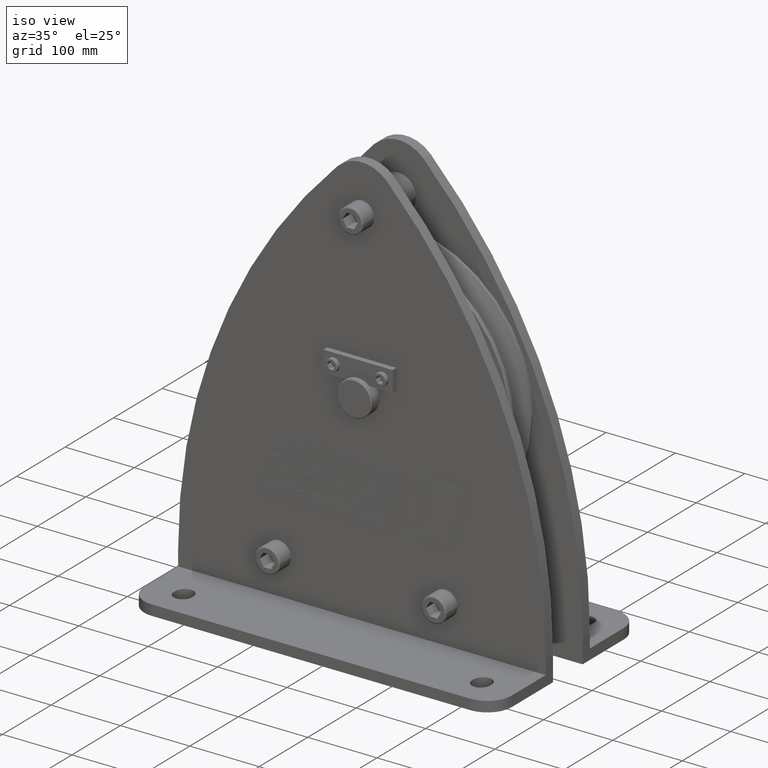
[diagram: clean part render]
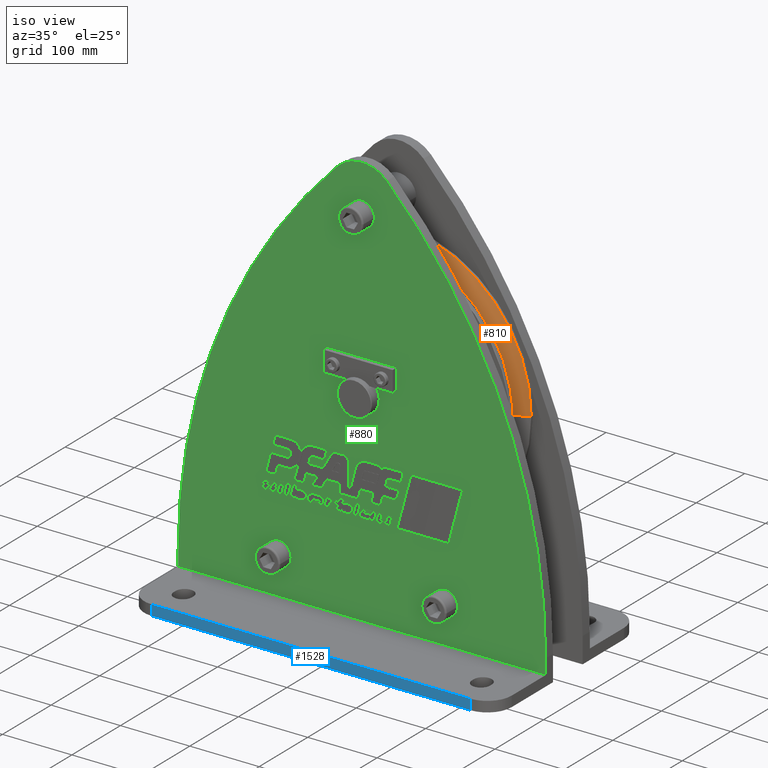
[diagram: same view with three faces highlighted in distinct colors, each labeled with its STEP entity id]
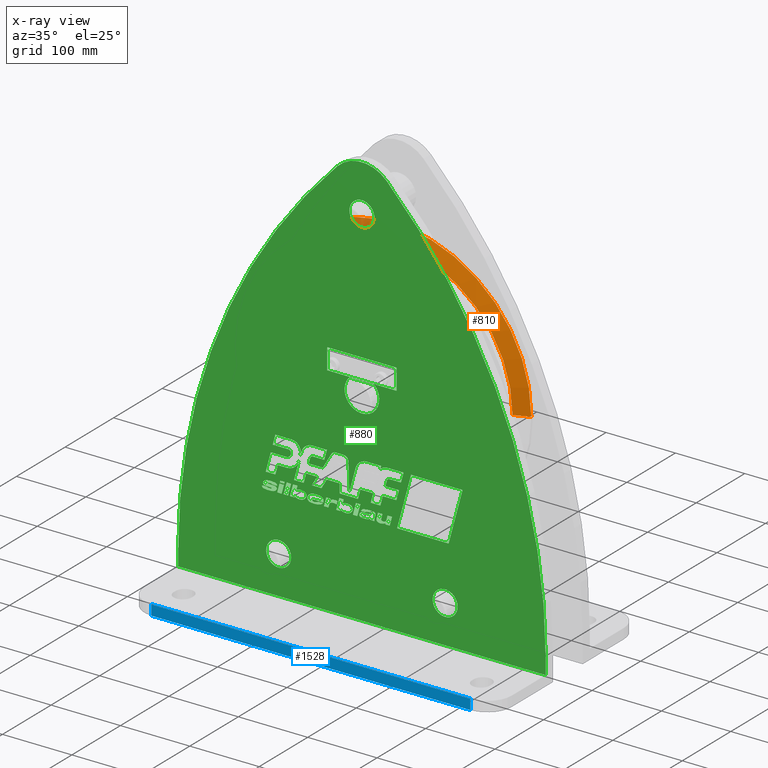
[diagram: x-ray of the same camera — body ghosted, the three highlighted faces saturated]
A machine part, iso view with three faces highlighted in distinct colors.
The next image is the same camera in x-ray (body ghosted, the three faces saturated) — at least one of them is partly hidden behind the body in this view.
Their STEP definitions:

[orange] entity #810 — the highlighted conical surface has half-angle 67.5 deg.
#810=ADVANCED_FACE('',(#2188),#2189,.T.);
#2188=FACE_OUTER_BOUND('',#4220,.T.);
#2189=CONICAL_SURFACE('',#4221,189.4939855,1.17809722010449);
#4220=EDGE_LOOP('',(#6756,#6757,#6758,#6759));
#4221=AXIS2_PLACEMENT_3D('',#6760,#6761,#6762);
#6756=ORIENTED_EDGE('',*,*,#12527,.F.);
#6757=ORIENTED_EDGE('',*,*,#12525,.T.);
#6758=ORIENTED_EDGE('',*,*,#12528,.F.);
#6759=ORIENTED_EDGE('',*,*,#12529,.F.);
#6760=CARTESIAN_POINT('',(0.0,13.313365,0.0));
#6761=DIRECTION('',(-0.0,1.0,-0.0));
#6762=DIRECTION('',(1.0,0.0,0.0));
#12525=EDGE_CURVE('',#15221,#15223,#15225,.T.);
#12527=EDGE_CURVE('',#15221,#15227,#15228,.T.);
#12528=EDGE_CURVE('',#15229,#15223,#15230,.T.);
#12529=EDGE_CURVE('',#15227,#15229,#15231,.T.);
#15221=VERTEX_POINT('',#22073);
#15223=VERTEX_POINT('',#22076);
#15225=CIRCLE('',#22079,200.0);
#15227=VERTEX_POINT('',#22081);
#15228=LINE('',#22082,#22083);
#15229=VERTEX_POINT('',#22084);
#15230=LINE('',#22085,#22086);
#15231=CIRCLE('',#22087,178.987971);
#22073=CARTESIAN_POINT('',(200.0,17.665099,0.0));
#22076=CARTESIAN_POINT('',(-200.0,17.665099,2.44929359829471E-014));
#22079=AXIS2_PLACEMENT_3D('',#27448,#27449,#27450);
#22081=CARTESIAN_POINT('',(178.987971,8.961631,0.0));
#22082=CARTESIAN_POINT('',(189.4939855,13.313365,-2.3206320280025E-014));
#22083=VECTOR('',#27451,1.0);
#22084=CARTESIAN_POINT('',(-178.987971,8.961631,2.19197045771029E-014));
#22085=CARTESIAN_POINT('',(-189.4939855,13.313365,2.3206320280025E-014));
#22086=VECTOR('',#27452,1.0);
#22087=AXIS2_PLACEMENT_3D('',#27453,#27454,#27455);
#27448=CARTESIAN_POINT('',(0.0,17.665099,0.0));
#27449=DIRECTION('',(0.0,-1.0,0.0));
#27450=DIRECTION('',(1.0,0.0,0.0));
#27451=DIRECTION('',(-0.923879522947386,-0.382683455454389,1.1314261005753E-016));
#27452=DIRECTION('',(-0.923879522947386,0.382683455454389,1.1314261005753E-016));
#27453=CARTESIAN_POINT('',(0.0,8.961631,0.0));
#27454=DIRECTION('',(0.0,-1.0,0.0));
#27455=DIRECTION('',(1.0,0.0,0.0));

[blue] entity #1528 — the highlighted planar face has unit normal (0, -1, 0).
#1528=ADVANCED_FACE('',(#3317),#3318,.T.);
#3317=FACE_OUTER_BOUND('',#5349,.T.);
#3318=PLANE('',#5350);
#5349=EDGE_LOOP('',(#10185,#10186,#10187,#10188));
#5350=AXIS2_PLACEMENT_3D('',#10189,#10190,#10191);
#10185=ORIENTED_EDGE('',*,*,#13903,.T.);
#10186=ORIENTED_EDGE('',*,*,#13905,.F.);
#10187=ORIENTED_EDGE('',*,*,#13883,.F.);
#10188=ORIENTED_EDGE('',*,*,#13907,.T.);
#10189=CARTESIAN_POINT('',(-3.80850906367414E-012,-150.5,-310.0));
#10190=DIRECTION('',(0.0,-1.0,0.0));
#10191=DIRECTION('',(1.0,0.0,0.0));
#13883=EDGE_CURVE('',#17247,#17249,#17250,.T.);
#13903=EDGE_CURVE('',#17277,#17279,#17281,.T.);
#13905=EDGE_CURVE('',#17249,#17279,#17283,.T.);
#13907=EDGE_CURVE('',#17247,#17277,#17285,.T.);
#17247=VERTEX_POINT('',#24817);
#17249=VERTEX_POINT('',#24819);
#17250=LINE('',#24820,#24821);
#17277=VERTEX_POINT('',#24856);
#17279=VERTEX_POINT('',#24858);
#17281=LINE('',#24860,#24861);
#17283=LINE('',#24863,#24864);
#17285=LINE('',#24866,#24867);
#24817=CARTESIAN_POINT('',(229.999999999992,-150.5,-310.0));
#24819=CARTESIAN_POINT('',(-230.0,-150.5,-310.0));
#24820=CARTESIAN_POINT('',(230.0,-150.5,-310.0));
#24821=VECTOR('',#29028,1.0);
#24856=CARTESIAN_POINT('',(229.999999999992,-150.5,-295.0));
#24858=CARTESIAN_POINT('',(-230.0,-150.5,-295.0));
#24860=CARTESIAN_POINT('',(230.0,-150.5,-295.0));
#24861=VECTOR('',#29058,1.0);
#24863=CARTESIAN_POINT('',(-230.0,-150.5,-310.0));
#24864=VECTOR('',#29059,1.0);
#24866=CARTESIAN_POINT('',(229.999999999992,-150.5,-310.0));
#24867=VECTOR('',#29060,1.0);
#29028=DIRECTION('',(-1.0,0.0,0.0));
#29058=DIRECTION('',(-1.0,0.0,0.0));
#29059=DIRECTION('',(0.0,0.0,1.0));
#29060=DIRECTION('',(0.0,0.0,1.0));

[green] entity #880 — the highlighted planar face has unit normal (0, -1, 0).
#880=ADVANCED_FACE('',(#2296,#2297,#2298,#2299,#2300,#2301,#2302,#2303,#2304,#2305,#2306,#2307,#2308,#2309,#2310,#2311,#2312,#2313,#2314),#2315,.T.);
#2296=FACE_BOUND('',#4328,.T.);
#2297=FACE_BOUND('',#4329,.T.);
#2298=FACE_BOUND('',#4330,.T.);
#2299=FACE_BOUND('',#4331,.T.);
#2300=FACE_BOUND('',#4332,.T.);
#2301=FACE_BOUND('',#4333,.T.);
#2302=FACE_BOUND('',#4334,.T.);
#2303=FACE_BOUND('',#4335,.T.);
#2304=FACE_BOUND('',#4336,.T.);
#2305=FACE_BOUND('',#4337,.T.);
#2306=FACE_BOUND('',#4338,.T.);
#2307=FACE_BOUND('',#4339,.T.);
#2308=FACE_BOUND('',#4340,.T.);
#2309=FACE_BOUND('',#4341,.T.);
#2310=FACE_BOUND('',#4342,.T.);
#2311=FACE_BOUND('',#4343,.T.);
#2312=FACE_BOUND('',#4344,.T.);
#2313=FACE_BOUND('',#4345,.T.);
#2314=FACE_OUTER_BOUND('',#4346,.T.);
#2315=PLANE('',#4347);
#4328=EDGE_LOOP('',(#7075,#7076,#7077,#7078));
#4329=EDGE_LOOP('',(#7079,#7080,#7081,#7082));
#4330=EDGE_LOOP('',(#7083,#7084,#7085,#7086));
#4331=EDGE_LOOP('',(#7087,#7088,#7089,#7090));
#4332=EDGE_LOOP('',(#7091,#7092,#7093,#7094));
#4333=EDGE_LOOP('',(#7095,#7096,#7097,#7098,#7099,#7100,#7101,#7102,#7103));
#4334=EDGE_LOOP('',(#7104,#7105,#7106,#7107,#7108,#7109,#7110,#7111,#7112,#7113,#7114,#7115,#7116,#7117,#7118));
#4335=EDGE_LOOP('',(#7119,#7120,#7121,#7122,#7123,#7124,#7125,#7126,#7127,#7128,#7129,#7130,#7131,#7132,#7133,#7134,#7135,#7136,#7137,#7138));
#4336=EDGE_LOOP('',(#7139,#7140,#7141,#7142,#7143,#7144,#7145,#7146,#7147,#7148));
#4337=EDGE_LOOP('',(#7149,#7150,#7151,#7152,#7153,#7154,#7155,#7156,#7157,#7158,#7159,#7160,#7161,#7162,#7163,#7164,#7165));
#4338=EDGE_LOOP('',(#7166,#7167,#7168,#7169,#7170,#7171,#7172,#7173,#7174,#7175,#7176,#7177));
#4339=EDGE_LOOP('',(#7178,#7179,#7180,#7181,#7182,#7183,#7184,#7185,#7186,#7187,#7188,#7189));
#4340=EDGE_LOOP('',(#7190,#7191,#7192,#7193,#7194,#7195,#7196,#7197,#7198,#7199,#7200,#7201,#7202,#7203,#7204,#7205,#7206,#7207,#7208,#7209,#7210,#7211,#7212,#7213,#7214,#7215,#7216,#7217,#7218,#7219,#7220,#7221,#7222,#7223,#7224,#7225,#7226,#7227,#7228,#7229,#7230,#7231,#7232,#7233,#7234,#7235,#7236,#7237,#7238,#7239,#7240,#7241,#7242,#7243));
#4341=EDGE_LOOP('',(#7244,#7245));
#4342=EDGE_LOOP('',(#7246,#7247));
#4343=EDGE_LOOP('',(#7248,#7249));
#4344=EDGE_LOOP('',(#7250,#7251,#7252,#7253));
#4345=EDGE_LOOP('',(#7254,#7255,#7256));
#4346=EDGE_LOOP('',(#7257,#7258,#7259,#7260,#7261,#7262));
#4347=AXIS2_PLACEMENT_3D('',#7263,#7264,#7265);
#7075=ORIENTED_EDGE('',*,*,#12669,.T.);
#7076=ORIENTED_EDGE('',*,*,#12674,.T.);
#7077=ORIENTED_EDGE('',*,*,#12678,.T.);
#7078=ORIENTED_EDGE('',*,*,#12681,.T.);
#7079=ORIENTED_EDGE('',*,*,#12684,.T.);
#7080=ORIENTED_EDGE('',*,*,#12685,.T.);
#7081=ORIENTED_EDGE('',*,*,#12686,.T.);
#7082=ORIENTED_EDGE('',*,*,#12687,.T.);
#7083=ORIENTED_EDGE('',*,*,#12688,.T.);
#7084=ORIENTED_EDGE('',*,*,#12689,.T.);
#7085=ORIENTED_EDGE('',*,*,#12690,.T.);
#7086=ORIENTED_EDGE('',*,*,#12691,.T.);
#7087=ORIENTED_EDGE('',*,*,#12692,.T.);
#7088=ORIENTED_EDGE('',*,*,#12693,.T.);
#7089=ORIENTED_EDGE('',*,*,#12694,.T.);
#7090=ORIENTED_EDGE('',*,*,#12695,.T.);
#7091=ORIENTED_EDGE('',*,*,#12696,.T.);
#7092=ORIENTED_EDGE('',*,*,#12697,.T.);
#7093=ORIENTED_EDGE('',*,*,#12698,.T.);
#7094=ORIENTED_EDGE('',*,*,#12699,.T.);
#7095=ORIENTED_EDGE('',*,*,#12700,.T.);
#7096=ORIENTED_EDGE('',*,*,#12701,.T.);
#7097=ORIENTED_EDGE('',*,*,#12702,.T.);
#7098=ORIENTED_EDGE('',*,*,#12703,.T.);
#7099=ORIENTED_EDGE('',*,*,#12704,.T.);
#7100=ORIENTED_EDGE('',*,*,#12705,.T.);
#7101=ORIENTED_EDGE('',*,*,#12706,.T.);
#7102=ORIENTED_EDGE('',*,*,#12707,.T.);
#7103=ORIENTED_EDGE('',*,*,#12708,.T.);
#7104=ORIENTED_EDGE('',*,*,#12709,.T.);
#7105=ORIENTED_EDGE('',*,*,#12710,.T.);
#7106=ORIENTED_EDGE('',*,*,#12711,.T.);
#7107=ORIENTED_EDGE('',*,*,#12712,.T.);
#7108=ORIENTED_EDGE('',*,*,#12713,.T.);
#7109=ORIENTED_EDGE('',*,*,#12714,.T.);
#7110=ORIENTED_EDGE('',*,*,#12715,.T.);
#7111=ORIENTED_EDGE('',*,*,#12716,.T.);
#7112=ORIENTED_EDGE('',*,*,#12717,.T.);
#7113=ORIENTED_EDGE('',*,*,#12718,.T.);
#7114=ORIENTED_EDGE('',*,*,#12719,.T.);
#7115=ORIENTED_EDGE('',*,*,#12720,.T.);
#7116=ORIENTED_EDGE('',*,*,#12721,.T.);
#7117=ORIENTED_EDGE('',*,*,#12722,.T.);
#7118=ORIENTED_EDGE('',*,*,#12723,.T.);
#7119=ORIENTED_EDGE('',*,*,#12724,.T.);
#7120=ORIENTED_EDGE('',*,*,#12725,.T.);
#7121=ORIENTED_EDGE('',*,*,#12726,.T.);
#7122=ORIENTED_EDGE('',*,*,#12727,.T.);
#7123=ORIENTED_EDGE('',*,*,#12728,.T.);
#7124=ORIENTED_EDGE('',*,*,#12729,.T.);
#7125=ORIENTED_EDGE('',*,*,#12730,.T.);
#7126=ORIENTED_EDGE('',*,*,#12731,.T.);
#7127=ORIENTED_EDGE('',*,*,#12732,.T.);
#7128=ORIENTED_EDGE('',*,*,#12733,.T.);
#7129=ORIENTED_EDGE('',*,*,#12734,.T.);
#7130=ORIENTED_EDGE('',*,*,#12735,.T.);
#7131=ORIENTED_EDGE('',*,*,#12736,.T.);
#7132=ORIENTED_EDGE('',*,*,#12737,.T.);
#7133=ORIENTED_EDGE('',*,*,#12738,.T.);
#7134=ORIENTED_EDGE('',*,*,#12739,.T.);
#7135=ORIENTED_EDGE('',*,*,#12740,.T.);
#7136=ORIENTED_EDGE('',*,*,#12741,.T.);
#7137=ORIENTED_EDGE('',*,*,#12742,.T.);
#7138=ORIENTED_EDGE('',*,*,#12743,.T.);
#7139=ORIENTED_EDGE('',*,*,#12744,.T.);
#7140=ORIENTED_EDGE('',*,*,#12745,.T.);
#7141=ORIENTED_EDGE('',*,*,#12746,.T.);
#7142=ORIENTED_EDGE('',*,*,#12747,.T.);
#7143=ORIENTED_EDGE('',*,*,#12748,.T.);
#7144=ORIENTED_EDGE('',*,*,#12749,.T.);
#7145=ORIENTED_EDGE('',*,*,#12750,.T.);
#7146=ORIENTED_EDGE('',*,*,#12751,.T.);
#7147=ORIENTED_EDGE('',*,*,#12752,.T.);
#7148=ORIENTED_EDGE('',*,*,#12753,.T.);
#7149=ORIENTED_EDGE('',*,*,#12754,.T.);
#7150=ORIENTED_EDGE('',*,*,#12755,.T.);
#7151=ORIENTED_EDGE('',*,*,#12756,.T.);
#7152=ORIENTED_EDGE('',*,*,#12757,.T.);
#7153=ORIENTED_EDGE('',*,*,#12758,.T.);
#7154=ORIENTED_EDGE('',*,*,#12759,.T.);
#7155=ORIENTED_EDGE('',*,*,#12760,.T.);
#7156=ORIENTED_EDGE('',*,*,#12761,.T.);
#7157=ORIENTED_EDGE('',*,*,#12762,.T.);
#7158=ORIENTED_EDGE('',*,*,#12763,.T.);
#7159=ORIENTED_EDGE('',*,*,#12764,.T.);
#7160=ORIENTED_EDGE('',*,*,#12765,.T.);
#7161=ORIENTED_EDGE('',*,*,#12766,.T.);
#7162=ORIENTED_EDGE('',*,*,#12767,.T.);
#7163=ORIENTED_EDGE('',*,*,#12768,.T.);
#7164=ORIENTED_EDGE('',*,*,#12769,.T.);
#7165=ORIENTED_EDGE('',*,*,#12770,.T.);
#7166=ORIENTED_EDGE('',*,*,#12771,.T.);
#7167=ORIENTED_EDGE('',*,*,#12772,.T.);
#7168=ORIENTED_EDGE('',*,*,#12773,.T.);
#7169=ORIENTED_EDGE('',*,*,#12774,.T.);
#7170=ORIENTED_EDGE('',*,*,#12775,.T.);
#7171=ORIENTED_EDGE('',*,*,#12776,.T.);
#7172=ORIENTED_EDGE('',*,*,#12777,.T.);
#7173=ORIENTED_EDGE('',*,*,#12778,.T.);
#7174=ORIENTED_EDGE('',*,*,#12779,.T.);
#7175=ORIENTED_EDGE('',*,*,#12780,.T.);
#7176=ORIENTED_EDGE('',*,*,#12781,.T.);
#7177=ORIENTED_EDGE('',*,*,#12782,.T.);
#7178=ORIENTED_EDGE('',*,*,#12783,.T.);
#7179=ORIENTED_EDGE('',*,*,#12784,.T.);
#7180=ORIENTED_EDGE('',*,*,#12785,.T.);
#7181=ORIENTED_EDGE('',*,*,#12786,.T.);
#7182=ORIENTED_EDGE('',*,*,#12787,.T.);
#7183=ORIENTED_EDGE('',*,*,#12788,.T.);
#7184=ORIENTED_EDGE('',*,*,#12789,.T.);
#7185=ORIENTED_EDGE('',*,*,#12790,.T.);
#7186=ORIENTED_EDGE('',*,*,#12791,.T.);
#7187=ORIENTED_EDGE('',*,*,#12792,.T.);
#7188=ORIENTED_EDGE('',*,*,#12793,.T.);
#7189=ORIENTED_EDGE('',*,*,#12794,.T.);
#7190=ORIENTED_EDGE('',*,*,#12795,.T.);
#7191=ORIENTED_EDGE('',*,*,#12796,.T.);
#7192=ORIENTED_EDGE('',*,*,#12797,.T.);
#7193=ORIENTED_EDGE('',*,*,#12798,.T.);
#7194=ORIENTED_EDGE('',*,*,#12799,.T.);
#7195=ORIENTED_EDGE('',*,*,#12800,.T.);
#7196=ORIENTED_EDGE('',*,*,#12801,.T.);
#7197=ORIENTED_EDGE('',*,*,#12802,.T.);
#7198=ORIENTED_EDGE('',*,*,#12803,.T.);
#7199=ORIENTED_EDGE('',*,*,#12804,.T.);
#7200=ORIENTED_EDGE('',*,*,#12805,.T.);
#7201=ORIENTED_EDGE('',*,*,#12806,.T.);
#7202=ORIENTED_EDGE('',*,*,#12807,.T.);
#7203=ORIENTED_EDGE('',*,*,#12808,.T.);
#7204=ORIENTED_EDGE('',*,*,#12809,.T.);
#7205=ORIENTED_EDGE('',*,*,#12810,.T.);
#7206=ORIENTED_EDGE('',*,*,#12811,.T.);
#7207=ORIENTED_EDGE('',*,*,#12812,.T.);
#7208=ORIENTED_EDGE('',*,*,#12813,.T.);
#7209=ORIENTED_EDGE('',*,*,#12814,.T.);
#7210=ORIENTED_EDGE('',*,*,#12815,.T.);
#7211=ORIENTED_EDGE('',*,*,#12816,.T.);
#7212=ORIENTED_EDGE('',*,*,#12817,.T.);
#7213=ORIENTED_EDGE('',*,*,#12818,.T.);
#7214=ORIENTED_EDGE('',*,*,#12819,.T.);
#7215=ORIENTED_EDGE('',*,*,#12820,.T.);
#7216=ORIENTED_EDGE('',*,*,#12821,.T.);
#7217=ORIENTED_EDGE('',*,*,#12822,.T.);
#7218=ORIENTED_EDGE('',*,*,#12823,.T.);
#7219=ORIENTED_EDGE('',*,*,#12824,.T.);
#7220=ORIENTED_EDGE('',*,*,#12825,.T.);
#7221=ORIENTED_EDGE('',*,*,#12826,.T.);
#7222=ORIENTED_EDGE('',*,*,#12827,.T.);
#7223=ORIENTED_EDGE('',*,*,#12828,.T.);
#7224=ORIENTED_EDGE('',*,*,#12829,.T.);
#7225=ORIENTED_EDGE('',*,*,#12830,.T.);
#7226=ORIENTED_EDGE('',*,*,#12831,.T.);
#7227=ORIENTED_EDGE('',*,*,#12832,.T.);
#7228=ORIENTED_EDGE('',*,*,#12833,.T.);
#7229=ORIENTED_EDGE('',*,*,#12834,.T.);
#7230=ORIENTED_EDGE('',*,*,#12835,.T.);
#7231=ORIENTED_EDGE('',*,*,#12836,.T.);
#7232=ORIENTED_EDGE('',*,*,#12837,.T.);
#7233=ORIENTED_EDGE('',*,*,#12838,.T.);
#7234=ORIENTED_EDGE('',*,*,#12839,.T.);
#7235=ORIENTED_EDGE('',*,*,#12840,.T.);
#7236=ORIENTED_EDGE('',*,*,#12841,.T.);
#7237=ORIENTED_EDGE('',*,*,#12842,.T.);
#7238=ORIENTED_EDGE('',*,*,#12843,.T.);
#7239=ORIENTED_EDGE('',*,*,#12844,.T.);
#7240=ORIENTED_EDGE('',*,*,#12845,.T.);
#7241=ORIENTED_EDGE('',*,*,#12846,.T.);
#7242=ORIENTED_EDGE('',*,*,#12847,.T.);
#7243=ORIENTED_EDGE('',*,*,#12848,.T.);
#7244=ORIENTED_EDGE('',*,*,#12195,.T.);
#7245=ORIENTED_EDGE('',*,*,#12849,.T.);
#7246=ORIENTED_EDGE('',*,*,#12204,.T.);
#7247=ORIENTED_EDGE('',*,*,#12850,.T.);
#7248=ORIENTED_EDGE('',*,*,#12213,.T.);
#7249=ORIENTED_EDGE('',*,*,#12851,.T.);
#7250=ORIENTED_EDGE('',*,*,#12852,.T.);
#7251=ORIENTED_EDGE('',*,*,#12853,.T.);
#7252=ORIENTED_EDGE('',*,*,#12854,.T.);
#7253=ORIENTED_EDGE('',*,*,#12855,.T.);
#7254=ORIENTED_EDGE('',*,*,#12856,.T.);
#7255=ORIENTED_EDGE('',*,*,#12242,.T.);
#7256=ORIENTED_EDGE('',*,*,#12857,.T.);
#7257=ORIENTED_EDGE('',*,*,#12858,.T.);
#7258=ORIENTED_EDGE('',*,*,#12859,.F.);
#7259=ORIENTED_EDGE('',*,*,#12860,.F.);
#7260=ORIENTED_EDGE('',*,*,#12861,.F.);
#7261=ORIENTED_EDGE('',*,*,#12862,.F.);
#7262=ORIENTED_EDGE('',*,*,#12863,.F.);
#7263=CARTESIAN_POINT('',(1.56119597077758E-012,-45.5,-70.8780156493509));
#7264=DIRECTION('',(0.0,-1.0,0.0));
#7265=DIRECTION('',(1.0,0.0,0.0));
#12195=EDGE_CURVE('',#14667,#14669,#14671,.T.);
#12204=EDGE_CURVE('',#14682,#14684,#14686,.T.);
#12213=EDGE_CURVE('',#14697,#14699,#14701,.T.);
#12242=EDGE_CURVE('',#14744,#14752,#14754,.T.);
#12669=EDGE_CURVE('',#15456,#15454,#15457,.T.);
#12674=EDGE_CURVE('',#15454,#15462,#15464,.T.);
#12678=EDGE_CURVE('',#15462,#15468,#15470,.T.);
#12681=EDGE_CURVE('',#15468,#15456,#15473,.T.);
#12684=EDGE_CURVE('',#15476,#15477,#15478,.T.);
#12685=EDGE_CURVE('',#15477,#15479,#15480,.T.);
#12686=EDGE_CURVE('',#15479,#15481,#15482,.T.);
#12687=EDGE_CURVE('',#15481,#15476,#15483,.T.);
#12688=EDGE_CURVE('',#15484,#15485,#15486,.T.);
#12689=EDGE_CURVE('',#15485,#15487,#15488,.T.);
#12690=EDGE_CURVE('',#15487,#15489,#15490,.T.);
#12691=EDGE_CURVE('',#15489,#15484,#15491,.T.);
#12692=EDGE_CURVE('',#15492,#15493,#15494,.T.);
#12693=EDGE_CURVE('',#15493,#15495,#15496,.T.);
#12694=EDGE_CURVE('',#15495,#15497,#15498,.T.);
#12695=EDGE_CURVE('',#15497,#15492,#15499,.T.);
#12696=EDGE_CURVE('',#15500,#15501,#15502,.T.);
#12697=EDGE_CURVE('',#15501,#15503,#15504,.T.);
#12698=EDGE_CURVE('',#15503,#15505,#15506,.T.);
#12699=EDGE_CURVE('',#15505,#15500,#15507,.T.);
#12700=EDGE_CURVE('',#15508,#15509,#15510,.T.);
#12701=EDGE_CURVE('',#15509,#15511,#15512,.T.);
#12702=EDGE_CURVE('',#15511,#15513,#15514,.T.);
#12703=EDGE_CURVE('',#15513,#15515,#15516,.T.);
#12704=EDGE_CURVE('',#15515,#15517,#15518,.T.);
#12705=EDGE_CURVE('',#15517,#15519,#15520,.T.);
#12706=EDGE_CURVE('',#15519,#15521,#15522,.T.);
#12707=EDGE_CURVE('',#15521,#15523,#15524,.T.);
#12708=EDGE_CURVE('',#15523,#15508,#15525,.T.);
#12709=EDGE_CURVE('',#15526,#15527,#15528,.T.);
#12710=EDGE_CURVE('',#15527,#15529,#15530,.T.);
#12711=EDGE_CURVE('',#15529,#15531,#15532,.T.);
#12712=EDGE_CURVE('',#15531,#15533,#15534,.T.);
#12713=EDGE_CURVE('',#15533,#15535,#15536,.T.);
#12714=EDGE_CURVE('',#15535,#15537,#15538,.T.);
#12715=EDGE_CURVE('',#15537,#15539,#15540,.T.);
#12716=EDGE_CURVE('',#15539,#15541,#15542,.T.);
#12717=EDGE_CURVE('',#15541,#15543,#15544,.T.);
#12718=EDGE_CURVE('',#15543,#15545,#15546,.T.);
#12719=EDGE_CURVE('',#15545,#15547,#15548,.T.);
#12720=EDGE_CURVE('',#15547,#15549,#15550,.T.);
#12721=EDGE_CURVE('',#15549,#15551,#15552,.T.);
#12722=EDGE_CURVE('',#15551,#15553,#15554,.T.);
#12723=EDGE_CURVE('',#15553,#15526,#15555,.T.);
#12724=EDGE_CURVE('',#15556,#15557,#15558,.T.);
#12725=EDGE_CURVE('',#15557,#15559,#15560,.T.);
#12726=EDGE_CURVE('',#15559,#15561,#15562,.T.);
#12727=EDGE_CURVE('',#15561,#15563,#15564,.T.);
#12728=EDGE_CURVE('',#15563,#15565,#15566,.T.);
#12729=EDGE_CURVE('',#15565,#15567,#15568,.T.);
#12730=EDGE_CURVE('',#15567,#15569,#15570,.T.);
#12731=EDGE_CURVE('',#15569,#15571,#15572,.T.);
#12732=EDGE_CURVE('',#15571,#15573,#15574,.T.);
#12733=EDGE_CURVE('',#15573,#15575,#15576,.T.);
#12734=EDGE_CURVE('',#15575,#15577,#15578,.T.);
#12735=EDGE_CURVE('',#15577,#15579,#15580,.T.);
#12736=EDGE_CURVE('',#15579,#15581,#15582,.T.);
#12737=EDGE_CURVE('',#15581,#15583,#15584,.T.);
#12738=EDGE_CURVE('',#15583,#15585,#15586,.T.);
#12739=EDGE_CURVE('',#15585,#15587,#15588,.T.);
#12740=EDGE_CURVE('',#15587,#15589,#15590,.T.);
#12741=EDGE_CURVE('',#15589,#15591,#15592,.T.);
#12742=EDGE_CURVE('',#15591,#15593,#15594,.T.);
#12743=EDGE_CURVE('',#15593,#15556,#15595,.T.);
#12744=EDGE_CURVE('',#15596,#15597,#15598,.T.);
#12745=EDGE_CURVE('',#15597,#15599,#15600,.T.);
#12746=EDGE_CURVE('',#15599,#15601,#15602,.T.);
#12747=EDGE_CURVE('',#15601,#15603,#15604,.T.);
#12748=EDGE_CURVE('',#15603,#15605,#15606,.T.);
#12749=EDGE_CURVE('',#15605,#15607,#15608,.T.);
#12750=EDGE_CURVE('',#15607,#15609,#15610,.T.);
#12751=EDGE_CURVE('',#15609,#15611,#15612,.T.);
#12752=EDGE_CURVE('',#15611,#15613,#15614,.T.);
#12753=EDGE_CURVE('',#15613,#15596,#15615,.T.);
#12754=EDGE_CURVE('',#15616,#15617,#15618,.T.);
#12755=EDGE_CURVE('',#15617,#15619,#15620,.T.);
#12756=EDGE_CURVE('',#15619,#15621,#15622,.T.);
#12757=EDGE_CURVE('',#15621,#15623,#15624,.T.);
#12758=EDGE_CURVE('',#15623,#15625,#15626,.T.);
#12759=EDGE_CURVE('',#15625,#15627,#15628,.T.);
#12760=EDGE_CURVE('',#15627,#15629,#15630,.T.);
#12761=EDGE_CURVE('',#15629,#15631,#15632,.T.);
#12762=EDGE_CURVE('',#15631,#15633,#15634,.T.);
#12763=EDGE_CURVE('',#15633,#15635,#15636,.T.);
#12764=EDGE_CURVE('',#15635,#15637,#15638,.T.);
#12765=EDGE_CURVE('',#15637,#15639,#15640,.T.);
#12766=EDGE_CURVE('',#15639,#15641,#15642,.T.);
#12767=EDGE_CURVE('',#15641,#15643,#15644,.T.);
#12768=EDGE_CURVE('',#15643,#15645,#15646,.T.);
#12769=EDGE_CURVE('',#15645,#15647,#15648,.T.);
#12770=EDGE_CURVE('',#15647,#15616,#15649,.T.);
#12771=EDGE_CURVE('',#15650,#15651,#15652,.T.);
#12772=EDGE_CURVE('',#15651,#15653,#15654,.T.);
#12773=EDGE_CURVE('',#15653,#15655,#15656,.T.);
#12774=EDGE_CURVE('',#15655,#15657,#15658,.T.);
#12775=EDGE_CURVE('',#15657,#15659,#15660,.T.);
#12776=EDGE_CURVE('',#15659,#15661,#15662,.T.);
#12777=EDGE_CURVE('',#15661,#15663,#15664,.T.);
#12778=EDGE_CURVE('',#15663,#15665,#15666,.T.);
#12779=EDGE_CURVE('',#15665,#15667,#15668,.T.);
#12780=EDGE_CURVE('',#15667,#15669,#15670,.T.);
#12781=EDGE_CURVE('',#15669,#15671,#15672,.T.);
#12782=EDGE_CURVE('',#15671,#15650,#15673,.T.);
#12783=EDGE_CURVE('',#15674,#15675,#15676,.T.);
#12784=EDGE_CURVE('',#15675,#15677,#15678,.T.);
#12785=EDGE_CURVE('',#15677,#15679,#15680,.T.);
#12786=EDGE_CURVE('',#15679,#15681,#15682,.T.);
#12787=EDGE_CURVE('',#15681,#15683,#15684,.T.);
#12788=EDGE_CURVE('',#15683,#15685,#15686,.T.);
#12789=EDGE_CURVE('',#15685,#15687,#15688,.T.);
#12790=EDGE_CURVE('',#15687,#15689,#15690,.T.);
#12791=EDGE_CURVE('',#15689,#15691,#15692,.T.);
#12792=EDGE_CURVE('',#15691,#15693,#15694,.T.);
#12793=EDGE_CURVE('',#15693,#15695,#15696,.T.);
#12794=EDGE_CURVE('',#15695,#15674,#15697,.T.);
#12795=EDGE_CURVE('',#15698,#15699,#15700,.T.);
#12796=EDGE_CURVE('',#15699,#15701,#15702,.T.);
#12797=EDGE_CURVE('',#15701,#15703,#15704,.T.);
#12798=EDGE_CURVE('',#15703,#15705,#15706,.T.);
#12799=EDGE_CURVE('',#15705,#15707,#15708,.T.);
#12800=EDGE_CURVE('',#15707,#15709,#15710,.T.);
#12801=EDGE_CURVE('',#15709,#15711,#15712,.T.);
#12802=EDGE_CURVE('',#15711,#15713,#15714,.T.);
#12803=EDGE_CURVE('',#15713,#15715,#15716,.T.);
#12804=EDGE_CURVE('',#15715,#15717,#15718,.T.);
#12805=EDGE_CURVE('',#15717,#15719,#15720,.T.);
#12806=EDGE_CURVE('',#15719,#15721,#15722,.T.);
#12807=EDGE_CURVE('',#15721,#15723,#15724,.T.);
#12808=EDGE_CURVE('',#15723,#15725,#15726,.T.);
#12809=EDGE_CURVE('',#15725,#15727,#15728,.T.);
#12810=EDGE_CURVE('',#15727,#15729,#15730,.T.);
#12811=EDGE_CURVE('',#15729,#15731,#15732,.T.);
#12812=EDGE_CURVE('',#15731,#15733,#15734,.T.);
#12813=EDGE_CURVE('',#15733,#15735,#15736,.T.);
#12814=EDGE_CURVE('',#15735,#15737,#15738,.T.);
#12815=EDGE_CURVE('',#15737,#15739,#15740,.T.);
#12816=EDGE_CURVE('',#15739,#15741,#15742,.T.);
#12817=EDGE_CURVE('',#15741,#15743,#15744,.T.);
#12818=EDGE_CURVE('',#15743,#15745,#15746,.T.);
#12819=EDGE_CURVE('',#15745,#15747,#15748,.T.);
#12820=EDGE_CURVE('',#15747,#15749,#15750,.T.);
#12821=EDGE_CURVE('',#15749,#15751,#15752,.T.);
#12822=EDGE_CURVE('',#15751,#15753,#15754,.T.);
#12823=EDGE_CURVE('',#15753,#15755,#15756,.T.);
#12824=EDGE_CURVE('',#15755,#15757,#15758,.T.);
#12825=EDGE_CURVE('',#15757,#15759,#15760,.T.);
#12826=EDGE_CURVE('',#15759,#15761,#15762,.T.);
#12827=EDGE_CURVE('',#15761,#15763,#15764,.T.);
#12828=EDGE_CURVE('',#15763,#15765,#15766,.T.);
#12829=EDGE_CURVE('',#15765,#15767,#15768,.T.);
#12830=EDGE_CURVE('',#15767,#15769,#15770,.T.);
#12831=EDGE_CURVE('',#15769,#15771,#15772,.T.);
#12832=EDGE_CURVE('',#15771,#15773,#15774,.T.);
#12833=EDGE_CURVE('',#15773,#15775,#15776,.T.);
#12834=EDGE_CURVE('',#15775,#15777,#15778,.T.);
#12835=EDGE_CURVE('',#15777,#15779,#15780,.T.);
#12836=EDGE_CURVE('',#15779,#15781,#15782,.T.);
#12837=EDGE_CURVE('',#15781,#15783,#15784,.T.);
#12838=EDGE_CURVE('',#15783,#15785,#15786,.T.);
#12839=EDGE_CURVE('',#15785,#15787,#15788,.T.);
#12840=EDGE_CURVE('',#15787,#15789,#15790,.T.);
#12841=EDGE_CURVE('',#15789,#15791,#15792,.T.);
#12842=EDGE_CURVE('',#15791,#15793,#15794,.T.);
#12843=EDGE_CURVE('',#15793,#15795,#15796,.T.);
#12844=EDGE_CURVE('',#15795,#15797,#15798,.T.);
#12845=EDGE_CURVE('',#15797,#15799,#15800,.T.);
#12846=EDGE_CURVE('',#15799,#15801,#15802,.T.);
#12847=EDGE_CURVE('',#15801,#15803,#15804,.T.);
#12848=EDGE_CURVE('',#15803,#15698,#15805,.T.);
#12849=EDGE_CURVE('',#14669,#14667,#15806,.T.);
#12850=EDGE_CURVE('',#14684,#14682,#15807,.T.);
#12851=EDGE_CURVE('',#14699,#14697,#15808,.T.);
#12852=EDGE_CURVE('',#15809,#15810,#15811,.T.);
#12853=EDGE_CURVE('',#15810,#15812,#15813,.T.);
#12854=EDGE_CURVE('',#15812,#15814,#15815,.T.);
#12855=EDGE_CURVE('',#15814,#15809,#15816,.T.);
#12856=EDGE_CURVE('',#15817,#14744,#15818,.T.);
#12857=EDGE_CURVE('',#14752,#15817,#15819,.T.);
#12858=EDGE_CURVE('',#15820,#15821,#15822,.T.);
#12859=EDGE_CURVE('',#15823,#15821,#15824,.T.);
#12860=EDGE_CURVE('',#15825,#15823,#15826,.T.);
#12861=EDGE_CURVE('',#15827,#15825,#15828,.T.);
#12862=EDGE_CURVE('',#15829,#15827,#15830,.T.);
#12863=EDGE_CURVE('',#15820,#15829,#15831,.T.);
#14667=VERTEX_POINT('',#19430);
#14669=VERTEX_POINT('',#19433);
#14671=CIRCLE('',#19436,18.0);
#14682=VERTEX_POINT('',#19447);
#14684=VERTEX_POINT('',#19450);
#14686=CIRCLE('',#19453,18.0);
#14697=VERTEX_POINT('',#19464);
#14699=VERTEX_POINT('',#19467);
#14701=CIRCLE('',#19470,18.0);
#14744=VERTEX_POINT('',#19521);
#14752=VERTEX_POINT('',#19531);
#14754=CIRCLE('',#19534,25.0);
#15454=VERTEX_POINT('',#22379);
#15456=VERTEX_POINT('',#22382);
#15457=LINE('',#22383,#22384);
#15462=VERTEX_POINT('',#22391);
#15464=LINE('',#22394,#22395);
#15468=VERTEX_POINT('',#22400);
#15470=LINE('',#22403,#22404);
#15473=LINE('',#22408,#22409);
#15476=VERTEX_POINT('',#22412);
#15477=VERTEX_POINT('',#22413);
#15478=LINE('',#22414,#22415);
#15479=VERTEX_POINT('',#22416);
#15480=LINE('',#22417,#22418);
#15481=VERTEX_POINT('',#22419);
#15482=LINE('',#22420,#22421);
#15483=LINE('',#22422,#22423);
#15484=VERTEX_POINT('',#22424);
#15485=VERTEX_POINT('',#22425);
#15486=LINE('',#22426,#22427);
#15487=VERTEX_POINT('',#22428);
#15488=LINE('',#22429,#22430);
#15489=VERTEX_POINT('',#22431);
#15490=LINE('',#22432,#22433);
#15491=LINE('',#22434,#22435);
#15492=VERTEX_POINT('',#22436);
#15493=VERTEX_POINT('',#22437);
#15494=LINE('',#22438,#22439);
#15495=VERTEX_POINT('',#22440);
#15496=LINE('',#22441,#22442);
#15497=VERTEX_POINT('',#22443);
#15498=LINE('',#22444,#22445);
#15499=LINE('',#22446,#22447);
#15500=VERTEX_POINT('',#22448);
#15501=VERTEX_POINT('',#22449);
#15502=LINE('',#22450,#22451);
#15503=VERTEX_POINT('',#22452);
#15504=LINE('',#22453,#22454);
#15505=VERTEX_POINT('',#22455);
#15506=LINE('',#22456,#22457);
#15507=LINE('',#22458,#22459);
#15508=VERTEX_POINT('',#22460);
#15509=VERTEX_POINT('',#22461);
#15510=LINE('',#22462,#22463);
#15511=VERTEX_POINT('',#22464);
#15512=CIRCLE('',#22465,9.52251136485951);
#15513=VERTEX_POINT('',#22466);
#15514=CIRCLE('',#22467,3.47947578546542);
#15515=VERTEX_POINT('',#22468);
#15516=LINE('',#22469,#22470);
#15517=VERTEX_POINT('',#22471);
#15518=LINE('',#22472,#22473);
#15519=VERTEX_POINT('',#22474);
#15520=LINE('',#22475,#22476);
#15521=VERTEX_POINT('',#22477);
#15522=LINE('',#22478,#22479);
#15523=VERTEX_POINT('',#22480);
#15524=LINE('',#22481,#22482);
#15525=CIRCLE('',#22483,11.5982524602728);
#15526=VERTEX_POINT('',#22484);
#15527=VERTEX_POINT('',#22485);
#15528=CIRCLE('',#22486,1.73973703856362);
#15529=VERTEX_POINT('',#22487);
#15530=CIRCLE('',#22488,8.6986894783501);
#15531=VERTEX_POINT('',#22489);
#15532=CIRCLE('',#22490,3.47947588868876);
#15533=VERTEX_POINT('',#22491);
#15534=LINE('',#22492,#22493);
#15535=VERTEX_POINT('',#22494);
#15536=LINE('',#22495,#22496);
#15537=VERTEX_POINT('',#22497);
#15538=LINE('',#22498,#22499);
#15539=VERTEX_POINT('',#22500);
#15540=LINE('',#22501,#22502);
#15541=VERTEX_POINT('',#22503);
#15542=LINE('',#22504,#22505);
#15543=VERTEX_POINT('',#22506);
#15544=CIRCLE('',#22507,3.9111471839946);
#15545=VERTEX_POINT('',#22508);
#15546=CIRCLE('',#22509,19.3304206740073);
#15547=VERTEX_POINT('',#22510);
#15548=CIRCLE('',#22511,9.66521025222819);
#15549=VERTEX_POINT('',#22512);
#15550=CIRCLE('',#22513,3.47947556686504);
#15551=VERTEX_POINT('',#22514);
#15552=LINE('',#22515,#22516);
#15553=VERTEX_POINT('',#22517);
#15554=LINE('',#22518,#22519);
#15555=LINE('',#22520,#22521);
#15556=VERTEX_POINT('',#22522);
#15557=VERTEX_POINT('',#22523);
#15558=CIRCLE('',#22524,8.21542880390386);
#15559=VERTEX_POINT('',#22525);
#15560=CIRCLE('',#22526,38.6608414494343);
#15561=VERTEX_POINT('',#22527);
#15562=CIRCLE('',#22528,3.47947572572273);
#15563=VERTEX_POINT('',#22529);
#15564=LINE('',#22530,#22531);
#15565=VERTEX_POINT('',#22532);
#15566=CIRCLE('',#22533,3.86608414035615);
#15567=VERTEX_POINT('',#22534);
#15568=CIRCLE('',#22535,7.73216827780935);
#15569=VERTEX_POINT('',#22536);
#15570=CIRCLE('',#22537,0.676564735617438);
#15571=VERTEX_POINT('',#22538);
#15572=LINE('',#22539,#22540);
#15573=VERTEX_POINT('',#22541);
#15574=CIRCLE('',#22542,19.3304206846806);
#15575=VERTEX_POINT('',#22543);
#15576=CIRCLE('',#22544,2.78358058290281);
#15577=VERTEX_POINT('',#22545);
#15578=CIRCLE('',#22546,8.21542881500832);
#15579=VERTEX_POINT('',#22547);
#15580=CIRCLE('',#22548,31.6603629370561);
#15581=VERTEX_POINT('',#22549);
#15582=CIRCLE('',#22550,38.6608413857646);
#15583=VERTEX_POINT('',#22551);
#15584=CIRCLE('',#22552,3.47947575652897);
#15585=VERTEX_POINT('',#22553);
#15586=LINE('',#22554,#22555);
#15587=VERTEX_POINT('',#22556);
#15588=CIRCLE('',#22557,3.86608414035615);
#15589=VERTEX_POINT('',#22558);
#15590=CIRCLE('',#22559,7.73216827780935);
#15591=VERTEX_POINT('',#22560);
#15592=CIRCLE('',#22561,0.676564735617437);
#15593=VERTEX_POINT('',#22562);
#15594=LINE('',#22563,#22564);
#15595=CIRCLE('',#22565,2.78358057128844);
#15596=VERTEX_POINT('',#22566);
#15597=VERTEX_POINT('',#22567);
#15598=LINE('',#22568,#22569);
#15599=VERTEX_POINT('',#22570);
#15600=CIRCLE('',#22571,2.16500715350161);
#15601=VERTEX_POINT('',#22572);
#15602=CIRCLE('',#22573,7.73216827553595);
#15603=VERTEX_POINT('',#22574);
#15604=LINE('',#22575,#22576);
#15605=VERTEX_POINT('',#22577);
#15606=CIRCLE('',#22578,9.66521038031437);
#15607=VERTEX_POINT('',#22579);
#15608=CIRCLE('',#22580,30.928673167496);
#15609=VERTEX_POINT('',#22581);
#15610=CIRCLE('',#22582,4.83260516320785);
#15611=VERTEX_POINT('',#22583);
#15612=CIRCLE('',#22584,10.051818799171);
#15613=VERTEX_POINT('',#22585);
#15614=CIRCLE('',#22586,43.6657638320531);
#15615=CIRCLE('',#22587,5.72180459967722);
#15616=VERTEX_POINT('',#22588);
#15617=VERTEX_POINT('',#22589);
#15618=CIRCLE('',#22590,2.89956322201131);
#15619=VERTEX_POINT('',#22591);
#15620=LINE('',#22592,#22593);
#15621=VERTEX_POINT('',#22594);
#15622=LINE('',#22595,#22596);
#15623=VERTEX_POINT('',#22597);
#15624=CIRCLE('',#22598,9.6652103625);
#15625=VERTEX_POINT('',#22599);
#15626=LINE('',#22600,#22601);
#15627=VERTEX_POINT('',#22602);
#15628=CIRCLE('',#22603,19.3304207150924);
#15629=VERTEX_POINT('',#22604);
#15630=CIRCLE('',#22605,2.70625875852069);
#15631=VERTEX_POINT('',#22606);
#15632=CIRCLE('',#22607,4.83260518185642);
#15633=VERTEX_POINT('',#22608);
#15634=LINE('',#22609,#22610);
#15635=VERTEX_POINT('',#22611);
#15636=CIRCLE('',#22612,0.966521066536868);
#15637=VERTEX_POINT('',#22613);
#15638=CIRCLE('',#22614,19.3304206729791);
#15639=VERTEX_POINT('',#22615);
#15640=CIRCLE('',#22616,3.47947575307974);
#15641=VERTEX_POINT('',#22617);
#15642=LINE('',#22618,#22619);
#15643=VERTEX_POINT('',#22620);
#15644=CIRCLE('',#22621,4.83260517196413);
#15645=VERTEX_POINT('',#22622);
#15646=CIRCLE('',#22623,38.6608413758566);
#15647=VERTEX_POINT('',#22624);
#15648=CIRCLE('',#22625,2.89956322201129);
#15649=LINE('',#22626,#22627);
#15650=VERTEX_POINT('',#22628);
#15651=VERTEX_POINT('',#22629);
#15652=LINE('',#22630,#22631);
#15653=VERTEX_POINT('',#22632);
#15654=LINE('',#22633,#22634);
#15655=VERTEX_POINT('',#22635);
#15656=LINE('',#22636,#22637);
#15657=VERTEX_POINT('',#22638);
#15658=CIRCLE('',#22639,9.66521034633375);
#15659=VERTEX_POINT('',#22640);
#15660=CIRCLE('',#22641,18.5572038964882);
#15661=VERTEX_POINT('',#22642);
#15662=CIRCLE('',#22643,9.66521037849514);
#15663=VERTEX_POINT('',#22644);
#15664=CIRCLE('',#22645,4.63930094310168);
#15665=VERTEX_POINT('',#22646);
#15666=CIRCLE('',#22647,9.66521036814322);
#15667=VERTEX_POINT('',#22648);
#15668=CIRCLE('',#22649,18.5572038957474);
#15669=VERTEX_POINT('',#22650);
#15670=CIRCLE('',#22651,9.18194985794439);
#15671=VERTEX_POINT('',#22652);
#15672=LINE('',#22653,#22654);
#15673=LINE('',#22655,#22656);
#15674=VERTEX_POINT('',#22657);
#15675=VERTEX_POINT('',#22658);
#15676=CIRCLE('',#22659,9.66521036814322);
#15677=VERTEX_POINT('',#22660);
#15678=CIRCLE('',#22661,18.5572038957474);
#15679=VERTEX_POINT('',#22662);
#15680=CIRCLE('',#22663,9.18194985794437);
#15681=VERTEX_POINT('',#22664);
#15682=LINE('',#22665,#22666);
#15683=VERTEX_POINT('',#22667);
#15684=LINE('',#22668,#22669);
#15685=VERTEX_POINT('',#22670);
#15686=LINE('',#22671,#22672);
#15687=VERTEX_POINT('',#22673);
#15688=LINE('',#22674,#22675);
#15689=VERTEX_POINT('',#22676);
#15690=LINE('',#22677,#22678);
#15691=VERTEX_POINT('',#22679);
#15692=CIRCLE('',#22680,9.66521034633375);
#15693=VERTEX_POINT('',#22681);
#15694=CIRCLE('',#22682,18.5572038762785);
#15695=VERTEX_POINT('',#22683);
#15696=CIRCLE('',#22684,9.66521037849513);
#15697=CIRCLE('',#22685,4.63930094310166);
#15698=VERTEX_POINT('',#22686);
#15699=VERTEX_POINT('',#22687);
#15700=LINE('',#22688,#22689);
#15701=VERTEX_POINT('',#22690);
#15702=LINE('',#22691,#22692);
#15703=VERTEX_POINT('',#22693);
#15704=CIRCLE('',#22694,6.5723430465);
#15705=VERTEX_POINT('',#22695);
#15706=LINE('',#22696,#22697);
#15707=VERTEX_POINT('',#22698);
#15708=CIRCLE('',#22699,3.9434058279);
#15709=VERTEX_POINT('',#22700);
#15710=LINE('',#22701,#22702);
#15711=VERTEX_POINT('',#22703);
#15712=LINE('',#22704,#22705);
#15713=VERTEX_POINT('',#22706);
#15714=LINE('',#22707,#22708);
#15715=VERTEX_POINT('',#22709);
#15716=CIRCLE('',#22710,13.5312945194611);
#15717=VERTEX_POINT('',#22711);
#15718=LINE('',#22712,#22713);
#15719=VERTEX_POINT('',#22714);
#15720=CIRCLE('',#22715,16.6241618235);
#15721=VERTEX_POINT('',#22716);
#15722=LINE('',#22717,#22718);
#15723=VERTEX_POINT('',#22719);
#15724=LINE('',#22720,#22721);
#15725=VERTEX_POINT('',#22722);
#15726=LINE('',#22723,#22724);
#15727=VERTEX_POINT('',#22725);
#15728=CIRCLE('',#22726,3.9434058279);
#15729=VERTEX_POINT('',#22727);
#15730=LINE('',#22728,#22729);
#15731=VERTEX_POINT('',#22730);
#15732=LINE('',#22731,#22732);
#15733=VERTEX_POINT('',#22733);
#15734=LINE('',#22734,#22735);
#15735=VERTEX_POINT('',#22736);
#15736=CIRCLE('',#22737,7.3455598755);
#15737=VERTEX_POINT('',#22738);
#15738=LINE('',#22739,#22740);
#15739=VERTEX_POINT('',#22741);
#15740=CIRCLE('',#22742,7.34555982999258);
#15741=VERTEX_POINT('',#22743);
#15742=LINE('',#22744,#22745);
#15743=VERTEX_POINT('',#22746);
#15744=LINE('',#22747,#22748);
#15745=VERTEX_POINT('',#22749);
#15746=CIRCLE('',#22750,16.6241618235);
#15747=VERTEX_POINT('',#22751);
#15748=LINE('',#22752,#22753);
#15749=VERTEX_POINT('',#22754);
#15750=LINE('',#22755,#22756);
#15751=VERTEX_POINT('',#22757);
#15752=CIRCLE('',#22758,16.6241618235);
#15753=VERTEX_POINT('',#22759);
#15754=LINE('',#22760,#22761);
#15755=VERTEX_POINT('',#22762);
#15756=LINE('',#22763,#22764);
#15757=VERTEX_POINT('',#22765);
#15758=LINE('',#22766,#22767);
#15759=VERTEX_POINT('',#22768);
#15760=CIRCLE('',#22769,3.9434058279);
#15761=VERTEX_POINT('',#22770);
#15762=LINE('',#22771,#22772);
#15763=VERTEX_POINT('',#22773);
#15764=LINE('',#22774,#22775);
#15765=VERTEX_POINT('',#22776);
#15766=LINE('',#22777,#22778);
#15767=VERTEX_POINT('',#22779);
#15768=LINE('',#22780,#22781);
#15769=VERTEX_POINT('',#22782);
#15770=LINE('',#22783,#22784);
#15771=VERTEX_POINT('',#22785);
#15772=LINE('',#22786,#22787);
#15773=VERTEX_POINT('',#22788);
#15774=LINE('',#22789,#22790);
#15775=VERTEX_POINT('',#22791);
#15776=LINE('',#22792,#22793);
#15777=VERTEX_POINT('',#22794);
#15778=LINE('',#22795,#22796);
#15779=VERTEX_POINT('',#22797);
#15780=LINE('',#22798,#22799);
#15781=VERTEX_POINT('',#22800);
#15782=LINE('',#22801,#22802);
#15783=VERTEX_POINT('',#22803);
#15784=LINE('',#22804,#22805);
#15785=VERTEX_POINT('',#22806);
#15786=LINE('',#22807,#22808);
#15787=VERTEX_POINT('',#22809);
#15788=LINE('',#22810,#22811);
#15789=VERTEX_POINT('',#22812);
#15790=LINE('',#22813,#22814);
#15791=VERTEX_POINT('',#22815);
#15792=LINE('',#22816,#22817);
#15793=VERTEX_POINT('',#22818);
#15794=LINE('',#22819,#22820);
#15795=VERTEX_POINT('',#22821);
#15796=LINE('',#22822,#22823);
#15797=VERTEX_POINT('',#22824);
#15798=LINE('',#22825,#22826);
#15799=VERTEX_POINT('',#22827);
#15800=CIRCLE('',#22828,18.1705954815);
#15801=VERTEX_POINT('',#22829);
#15802=LINE('',#22830,#22831);
#15803=VERTEX_POINT('',#22832);
#15804=LINE('',#22833,#22834);
#15805=LINE('',#22835,#22836);
#15806=CIRCLE('',#22837,18.0);
#15807=CIRCLE('',#22838,18.0);
#15808=CIRCLE('',#22839,18.0);
#15809=VERTEX_POINT('',#22840);
#15810=VERTEX_POINT('',#22841);
#15811=LINE('',#22842,#22843);
#15812=VERTEX_POINT('',#22844);
#15813=LINE('',#22845,#22846);
#15814=VERTEX_POINT('',#22847);
#15815=LINE('',#22848,#22849);
#15816=LINE('',#22850,#22851);
#15817=VERTEX_POINT('',#22852);
#15818=CIRCLE('',#22853,25.0);
#15819=LINE('',#22854,#22855);
#15820=VERTEX_POINT('',#22856);
#15821=VERTEX_POINT('',#22857);
#15822=LINE('',#22858,#22859);
#15823=VERTEX_POINT('',#22860);
#15824=LINE('',#22861,#22862);
#15825=VERTEX_POINT('',#22863);
#15826=CIRCLE('',#22864,799.999999964301);
#15827=VERTEX_POINT('',#22865);
#15828=CIRCLE('',#22866,50.0000000115002);
#15829=VERTEX_POINT('',#22867);
#15830=CIRCLE('',#22868,799.999999964301);
#15831=LINE('',#22869,#22870);
#19430=CARTESIAN_POINT('',(-102.0,-45.5,-240.0));
#19433=CARTESIAN_POINT('',(-138.0,-45.5,-240.0));
#19436=AXIS2_PLACEMENT_3D('',#26998,#26999,#27000);
#19447=CARTESIAN_POINT('',(138.0,-45.5,-240.0));
#19450=CARTESIAN_POINT('',(102.0,-45.5,-240.0));
#19453=AXIS2_PLACEMENT_3D('',#27015,#27016,#27017);
#19464=CARTESIAN_POINT('',(18.0,-45.5,235.0));
#19467=CARTESIAN_POINT('',(-18.0,-45.5,235.0));
#19470=AXIS2_PLACEMENT_3D('',#27032,#27033,#27034);
#19521=CARTESIAN_POINT('',(3.06161699786838E-015,-45.5,-25.0));
#19531=CARTESIAN_POINT('',(-18.3303027798234,-45.5,17.0));
#19534=AXIS2_PLACEMENT_3D('',#27082,#27083,#27084);
#22379=CARTESIAN_POINT('',(125.0,-45.5,-161.0));
#22382=CARTESIAN_POINT('',(145.096734274151,-45.5,-85.9979676105057));
#22383=CARTESIAN_POINT('',(142.126909074768,-45.5,-97.0815059982207));
#22384=VECTOR('',#27643,1.0);
#22391=CARTESIAN_POINT('',(50.7711844159998,-45.5,-161.0));
#22394=CARTESIAN_POINT('',(62.5000000000008,-45.5,-161.0));
#22395=VECTOR('',#27647,1.0);
#22400=CARTESIAN_POINT('',(70.8679186901509,-45.5,-85.9979676105057));
#22403=CARTESIAN_POINT('',(60.3359203136528,-45.5,-125.303920139133));
#22404=VECTOR('',#27650,1.0);
#22408=CARTESIAN_POINT('',(35.4339593450762,-45.5,-85.9979676105057));
#22409=VECTOR('',#27652,1.0);
#22412=CARTESIAN_POINT('',(-111.319605927056,-45.5,-143.989229785505));
#22413=CARTESIAN_POINT('',(-111.941154419328,-45.5,-146.308880241576));
#22414=CARTESIAN_POINT('',(-98.4522037278958,-45.5,-95.9674330136429));
#22415=VECTOR('',#27653,1.0);
#22416=CARTESIAN_POINT('',(-118.345098263353,-45.5,-146.308880241576));
#22417=CARTESIAN_POINT('',(-55.970577209663,-45.5,-146.308880241576));
#22418=VECTOR('',#27654,1.0);
#22419=CARTESIAN_POINT('',(-117.723549771081,-45.5,-143.989229785505));
#22420=CARTESIAN_POINT('',(-104.952430353742,-45.5,-96.3267652323496));
#22421=VECTOR('',#27655,1.0);
#22422=CARTESIAN_POINT('',(-58.8617748855397,-45.5,-143.989229785505));
#22423=VECTOR('',#27656,1.0);
#22424=CARTESIAN_POINT('',(-122.11582559756,-45.5,-160.381426537109));
#22425=CARTESIAN_POINT('',(-118.842622930895,-45.5,-148.165667670401));
#22426=CARTESIAN_POINT('',(-106.837794929633,-45.5,-103.363038858801));
#22427=VECTOR('',#27657,1.0);
#22428=CARTESIAN_POINT('',(-112.43867908687,-45.5,-148.165667670401));
#22429=CARTESIAN_POINT('',(-59.4213114654468,-45.5,-148.165667670401));
#22430=VECTOR('',#27658,1.0);
#22431=CARTESIAN_POINT('',(-115.711881908178,-45.5,-160.381426537109));
#22432=CARTESIAN_POINT('',(-99.0117404657293,-45.5,-98.0556520471171));
#22433=VECTOR('',#27659,1.0);
#22434=CARTESIAN_POINT('',(-57.8559409540883,-45.5,-160.381426537109));
#22435=VECTOR('',#27660,1.0);
#22436=CARTESIAN_POINT('',(-8.61072786566422,-45.5,-143.989229785507));
#22437=CARTESIAN_POINT('',(-2.20678417628162,-45.5,-143.989229785507));
#22438=CARTESIAN_POINT('',(-4.30536393283133,-45.5,-143.989229785507));
#22439=VECTOR('',#27661,1.0);
#22440=CARTESIAN_POINT('',(-6.59906000276035,-45.5,-160.381426537109));
#22441=CARTESIAN_POINT('',(7.00603074412067,-45.5,-109.606535989065));
#22442=VECTOR('',#27662,1.0);
#22443=CARTESIAN_POINT('',(-13.003003692142,-45.5,-160.381426537109));
#22444=CARTESIAN_POINT('',(-3.2995300013794,-45.5,-160.381426537109));
#22445=VECTOR('',#27663,1.0);
#22446=CARTESIAN_POINT('',(-1.37955942104744,-45.5,-117.002141412419));
#22447=VECTOR('',#27664,1.0);
#22448=CARTESIAN_POINT('',(-108.524051616129,-45.5,-143.989229785505));
#22449=CARTESIAN_POINT('',(-102.120107926747,-45.5,-143.989229785505));
#22450=CARTESIAN_POINT('',(-54.2620258080638,-45.5,-143.989229785505));
#22451=VECTOR('',#27665,1.0);
#22452=CARTESIAN_POINT('',(-106.512383753225,-45.5,-160.381426537109));
#22453=CARTESIAN_POINT('',(-89.5608312834406,-45.5,-97.1173706563961));
#22454=VECTOR('',#27666,1.0);
#22455=CARTESIAN_POINT('',(-112.916327442607,-45.5,-160.381426537109));
#22456=CARTESIAN_POINT('',(-53.2561918766119,-45.5,-160.381426537109));
#22457=VECTOR('',#27667,1.0);
#22458=CARTESIAN_POINT('',(-97.94642144861,-45.5,-104.512976079753));
#22459=VECTOR('',#27668,1.0);
#22460=CARTESIAN_POINT('',(-35.2700265645208,-45.5,-148.709077228336));
#22461=CARTESIAN_POINT('',(-36.4957815327359,-45.5,-153.283656613451));
#22462=CARTESIAN_POINT('',(-24.3598209670473,-45.5,-107.991639479541));
#22463=VECTOR('',#27669,1.0);
#22464=CARTESIAN_POINT('',(-45.4041959134536,-45.5,-153.555707226861));
#22465=AXIS2_PLACEMENT_3D('',#27670,#27671,#27672);
#22466=CARTESIAN_POINT('',(-47.043706182242,-45.5,-155.678977292632));
#22467=AXIS2_PLACEMENT_3D('',#27673,#27674,#27675);
#22468=CARTESIAN_POINT('',(-48.3037237799398,-45.5,-160.381426537109));
#22469=CARTESIAN_POINT('',(-34.8679194356358,-45.5,-110.23832686671));
#22470=VECTOR('',#27676,1.0);
#22471=CARTESIAN_POINT('',(-54.7076674693224,-45.5,-160.381426537109));
#22472=CARTESIAN_POINT('',(-24.1518618899691,-45.5,-160.381426537109));
#22473=VECTOR('',#27677,1.0);
#22474=CARTESIAN_POINT('',(-51.4344632562242,-45.5,-148.165662489849));
#22475=CARTESIAN_POINT('',(-41.6873812862754,-45.5,-111.789058482764));
#22476=VECTOR('',#27678,1.0);
#22477=CARTESIAN_POINT('',(-45.0305195668425,-45.5,-148.165662489849));
#22478=CARTESIAN_POINT('',(-25.7172316281113,-45.5,-148.165662489849));
#22479=VECTOR('',#27679,1.0);
#22480=CARTESIAN_POINT('',(-45.6308893374816,-45.5,-150.406272791396));
#22481=CARTESIAN_POINT('',(-33.8613263654897,-45.5,-106.481669439554));
#22482=VECTOR('',#27680,1.0);
#22483=AXIS2_PLACEMENT_3D('',#27681,#27682,#27683);
#22484=CARTESIAN_POINT('',(27.7096150706127,-45.5,-155.282703511217));
#22485=CARTESIAN_POINT('',(29.0646418625355,-45.5,-157.442009484499));
#22486=AXIS2_PLACEMENT_3D('',#27684,#27685,#27686);
#22487=CARTESIAN_POINT('',(32.5678736146765,-45.5,-157.390829970465));
#22488=AXIS2_PLACEMENT_3D('',#27687,#27688,#27689);
#22489=CARTESIAN_POINT('',(35.1783573720564,-45.5,-154.893795915302));
#22490=AXIS2_PLACEMENT_3D('',#27690,#27691,#27692);
#22491=CARTESIAN_POINT('',(36.9811540441078,-45.5,-148.165661656293));
#22492=CARTESIAN_POINT('',(44.5020727289175,-45.5,-120.097188130152));
#22493=VECTOR('',#27693,1.0);
#22494=CARTESIAN_POINT('',(43.3850981974191,-45.5,-148.165661656293));
#22495=CARTESIAN_POINT('',(18.4905770220547,-45.5,-148.165661656293));
#22496=VECTOR('',#27694,1.0);
#22497=CARTESIAN_POINT('',(40.1118950668257,-45.5,-160.381425703553));
#22498=CARTESIAN_POINT('',(51.5929270005821,-45.5,-117.533618364324));
#22499=VECTOR('',#27695,1.0);
#22500=CARTESIAN_POINT('',(33.7079509135135,-45.5,-160.381425703553));
#22501=CARTESIAN_POINT('',(20.0559475334136,-45.5,-160.381425703553));
#22502=VECTOR('',#27696,1.0);
#22503=CARTESIAN_POINT('',(34.2082593162841,-45.5,-158.514250439115));
#22504=CARTESIAN_POINT('',(43.766879416464,-45.5,-122.841015861458));
#22505=VECTOR('',#27697,1.0);
#22506=CARTESIAN_POINT('',(32.4910221384719,-45.5,-159.76084907734));
#22507=AXIS2_PLACEMENT_3D('',#27698,#27699,#27700);
#22508=CARTESIAN_POINT('',(26.9998006281413,-45.5,-160.917118185067));
#22509=AXIS2_PLACEMENT_3D('',#27701,#27702,#27703);
#22510=CARTESIAN_POINT('',(23.2948784159502,-45.5,-160.422497310058));
#22511=AXIS2_PLACEMENT_3D('',#27704,#27705,#27706);
#22512=CARTESIAN_POINT('',(21.0525971398184,-45.5,-156.227188086251));
#22513=AXIS2_PLACEMENT_3D('',#27707,#27708,#27709);
#22514=CARTESIAN_POINT('',(23.21267577695,-45.5,-148.165662489849));
#22515=CARTESIAN_POINT('',(31.0161130605157,-45.5,-119.042829496638));
#22516=VECTOR('',#27710,1.0);
#22517=CARTESIAN_POINT('',(29.6166199302623,-45.5,-148.165662489849));
#22518=CARTESIAN_POINT('',(11.6063378884758,-45.5,-148.165662489849));
#22519=VECTOR('',#27711,1.0);
#22520=CARTESIAN_POINT('',(38.2856052849251,-45.5,-115.812559627743));
#22521=VECTOR('',#27712,1.0);
#22522=CARTESIAN_POINT('',(-123.505121843717,-45.5,-157.752665490605));
#22523=CARTESIAN_POINT('',(-128.361515327252,-45.5,-160.43810054416));
#22524=AXIS2_PLACEMENT_3D('',#27713,#27714,#27715);
#22525=CARTESIAN_POINT('',(-141.534411944918,-45.5,-160.298344697869));
#22526=AXIS2_PLACEMENT_3D('',#27716,#27717,#27718);
#22527=CARTESIAN_POINT('',(-144.370960782967,-45.5,-157.18550969928));
#22528=AXIS2_PLACEMENT_3D('',#27719,#27720,#27721);
#22529=CARTESIAN_POINT('',(-136.818448139646,-45.5,-157.18550969928));
#22530=CARTESIAN_POINT('',(-72.1854803914826,-45.5,-157.18550969928));
#22531=VECTOR('',#27722,1.0);
#22532=CARTESIAN_POINT('',(-134.897806717843,-45.5,-158.083560360928));
#22533=AXIS2_PLACEMENT_3D('',#27723,#27724,#27725);
#22534=CARTESIAN_POINT('',(-130.626200483286,-45.5,-157.557999051852));
#22535=AXIS2_PLACEMENT_3D('',#27726,#27727,#27728);
#22536=CARTESIAN_POINT('',(-130.872206955962,-45.5,-156.259758235534));
#22537=AXIS2_PLACEMENT_3D('',#27729,#27730,#27731);
#22538=CARTESIAN_POINT('',(-138.5766380098,-45.5,-156.029272412485));
#22539=CARTESIAN_POINT('',(-66.7706127829316,-45.5,-158.177422056319));
#22540=VECTOR('',#27732,1.0);
#22541=CARTESIAN_POINT('',(-140.752484793166,-45.5,-155.840747770053));
#22542=AXIS2_PLACEMENT_3D('',#27733,#27734,#27735);
#22543=CARTESIAN_POINT('',(-142.004512066231,-45.5,-151.348608298608));
#22544=AXIS2_PLACEMENT_3D('',#27736,#27737,#27738);
#22545=CARTESIAN_POINT('',(-137.330013189312,-45.5,-148.694740721215));
#22546=AXIS2_PLACEMENT_3D('',#27739,#27740,#27741);
#22547=CARTESIAN_POINT('',(-129.278666974182,-45.5,-148.248409350633));
#22548=AXIS2_PLACEMENT_3D('',#27742,#27743,#27744);
#22549=CARTESIAN_POINT('',(-124.972899304563,-45.5,-148.804738601905));
#22550=AXIS2_PLACEMENT_3D('',#27745,#27746,#27747);
#22551=CARTESIAN_POINT('',(-122.146114530157,-45.5,-151.915764105107));
#22552=AXIS2_PLACEMENT_3D('',#27748,#27749,#27750);
#22553=CARTESIAN_POINT('',(-129.291555482814,-45.5,-151.915764105107));
#22554=CARTESIAN_POINT('',(-61.0730572650779,-45.5,-151.915764105107));
#22555=VECTOR('',#27751,1.0);
#22556=CARTESIAN_POINT('',(-131.212196904616,-45.5,-151.017713443461));
#22557=AXIS2_PLACEMENT_3D('',#27752,#27753,#27754);
#22558=CARTESIAN_POINT('',(-135.483803139956,-45.5,-151.543274752872));
#22559=AXIS2_PLACEMENT_3D('',#27755,#27756,#27757);
#22560=CARTESIAN_POINT('',(-135.237796666498,-45.5,-152.841515568854));
#22561=AXIS2_PLACEMENT_3D('',#27758,#27759,#27760);
#22562=CARTESIAN_POINT('',(-125.51247157191,-45.5,-153.132458473474));
#22563=CARTESIAN_POINT('',(-68.904275047158,-45.5,-154.825949741069));
#22564=VECTOR('',#27761,1.0);
#22565=AXIS2_PLACEMENT_3D('',#27762,#27763,#27764);
#22566=CARTESIAN_POINT('',(-55.4495572638523,-45.5,-155.704526572599));
#22567=CARTESIAN_POINT('',(-71.5904585692275,-45.5,-155.704526572599));
#22568=CARTESIAN_POINT('',(-27.7247786319254,-45.5,-155.704526572599));
#22569=VECTOR('',#27765,1.0);
#22570=CARTESIAN_POINT('',(-70.1503321000334,-45.5,-158.519134604258));
#22571=AXIS2_PLACEMENT_3D('',#27766,#27767,#27768);
#22572=CARTESIAN_POINT('',(-63.0480860632755,-45.5,-157.00932991812));
#22573=AXIS2_PLACEMENT_3D('',#27769,#27770,#27771);
#22574=CARTESIAN_POINT('',(-56.1084650220793,-45.5,-157.00932991812));
#22575=CARTESIAN_POINT('',(-31.524043031637,-45.5,-157.00932991812));
#22576=VECTOR('',#27772,1.0);
#22577=CARTESIAN_POINT('',(-60.5178087175801,-45.5,-159.724605537978));
#22578=AXIS2_PLACEMENT_3D('',#27773,#27774,#27775);
#22579=CARTESIAN_POINT('',(-74.7321867103026,-45.5,-160.416190256395));
#22580=AXIS2_PLACEMENT_3D('',#27776,#27777,#27778);
#22581=CARTESIAN_POINT('',(-77.9728242711811,-45.5,-153.14317007948));
#22582=AXIS2_PLACEMENT_3D('',#27779,#27780,#27781);
#22583=CARTESIAN_POINT('',(-70.4091680671915,-45.5,-148.387231324197));
#22584=AXIS2_PLACEMENT_3D('',#27782,#27783,#27784);
#22585=CARTESIAN_POINT('',(-60.2164589511896,-45.5,-148.552499820768));
#22586=AXIS2_PLACEMENT_3D('',#27785,#27786,#27787);
#22587=AXIS2_PLACEMENT_3D('',#27788,#27789,#27790);
#22588=CARTESIAN_POINT('',(17.9444788543757,-45.5,-158.40810202846));
#22589=CARTESIAN_POINT('',(18.1161596988682,-45.5,-160.381427157626));
#22590=AXIS2_PLACEMENT_3D('',#27791,#27792,#27793);
#22591=CARTESIAN_POINT('',(11.9304260074726,-45.5,-160.381427157626));
#22592=CARTESIAN_POINT('',(9.05807984943486,-45.5,-160.381427157626));
#22593=VECTOR('',#27794,1.0);
#22594=CARTESIAN_POINT('',(11.9304260074726,-45.5,-158.834992412728));
#22595=CARTESIAN_POINT('',(11.9304260074726,-45.5,-115.629721403488));
#22596=VECTOR('',#27795,1.0);
#22597=CARTESIAN_POINT('',(5.91434385816892,-45.5,-160.935611119084));
#22598=AXIS2_PLACEMENT_3D('',#27796,#27797,#27798);
#22599=CARTESIAN_POINT('',(2.6375791362166,-45.5,-160.935611119084));
#22600=CARTESIAN_POINT('',(2.95717192908524,-45.5,-160.935611119084));
#22601=VECTOR('',#27799,1.0);
#22602=CARTESIAN_POINT('',(-1.71437323945987,-45.5,-160.439352863265));
#22603=AXIS2_PLACEMENT_3D('',#27800,#27801,#27802);
#22604=CARTESIAN_POINT('',(-3.71914517646479,-45.5,-157.102138987483));
#22605=AXIS2_PLACEMENT_3D('',#27803,#27804,#27805);
#22606=CARTESIAN_POINT('',(0.646575630469499,-45.5,-153.529763160016));
#22607=AXIS2_PLACEMENT_3D('',#27806,#27807,#27808);
#22608=CARTESIAN_POINT('',(12.2439919087908,-45.5,-152.803071560833));
#22609=CARTESIAN_POINT('',(2.90389534095648,-45.5,-153.388319994494));
#22610=VECTOR('',#27809,1.0);
#22611=CARTESIAN_POINT('',(12.2825803966521,-45.5,-150.877008239433));
#22612=AXIS2_PLACEMENT_3D('',#27810,#27811,#27812);
#22613=CARTESIAN_POINT('',(7.11446654846679,-45.5,-151.039876925229));
#22614=AXIS2_PLACEMENT_3D('',#27813,#27814,#27815);
#22615=CARTESIAN_POINT('',(5.03129221960882,-45.5,-152.225050842099));
#22616=AXIS2_PLACEMENT_3D('',#27816,#27817,#27818);
#22617=CARTESIAN_POINT('',(-1.15444241239103,-45.5,-152.225050842099));
#22618=CARTESIAN_POINT('',(2.51564610980519,-45.5,-152.225050842099));
#22619=VECTOR('',#27819,1.0);
#22620=CARTESIAN_POINT('',(2.3237050628306,-45.5,-149.133803515276));
#22621=AXIS2_PLACEMENT_3D('',#27820,#27821,#27822);
#22622=CARTESIAN_POINT('',(17.2557312606938,-45.5,-148.688106274881));
#22623=AXIS2_PLACEMENT_3D('',#27823,#27824,#27825);
#22624=CARTESIAN_POINT('',(19.581422112228,-45.5,-152.298948627136));
#22625=AXIS2_PLACEMENT_3D('',#27826,#27827,#27828);
#22626=CARTESIAN_POINT('',(29.1031879466849,-45.5,-116.763246424175));
#22627=VECTOR('',#27829,1.0);
#22628=CARTESIAN_POINT('',(-37.0029315704965,-45.5,-160.381426537109));
#22629=CARTESIAN_POINT('',(-32.6106557440187,-45.5,-143.989229785505));
#22630=CARTESIAN_POINT('',(-24.5756421566078,-45.5,-114.002150460326));
#22631=VECTOR('',#27830,1.0);
#22632=CARTESIAN_POINT('',(-26.2067118999936,-45.5,-143.989229785505));
#22633=CARTESIAN_POINT('',(-16.3053278720086,-45.5,-143.989229785505));
#22634=VECTOR('',#27831,1.0);
#22635=CARTESIAN_POINT('',(-27.7826823868911,-45.5,-149.870831787872));
#22636=CARTESIAN_POINT('',(-16.1900518419837,-45.5,-106.6065450563));
#22637=VECTOR('',#27832,1.0);
#22638=CARTESIAN_POINT('',(-23.6760484745989,-45.5,-148.324813439565));
#22639=AXIS2_PLACEMENT_3D('',#27833,#27834,#27835);
#22640=CARTESIAN_POINT('',(-18.8257023947144,-45.5,-148.324813481381));
#22641=AXIS2_PLACEMENT_3D('',#27836,#27837,#27838);
#22642=CARTESIAN_POINT('',(-15.5842285087759,-45.5,-149.35581667313));
#22643=AXIS2_PLACEMENT_3D('',#27839,#27840,#27841);
#22644=CARTESIAN_POINT('',(-13.6030812964781,-45.5,-155.54749911674));
#22645=AXIS2_PLACEMENT_3D('',#27842,#27843,#27844);
#22646=CARTESIAN_POINT('',(-21.016750121261,-45.5,-160.787595416675));
#22647=AXIS2_PLACEMENT_3D('',#27845,#27846,#27847);
#22648=CARTESIAN_POINT('',(-25.6341957835145,-45.5,-160.795225118071));
#22649=AXIS2_PLACEMENT_3D('',#27848,#27849,#27850);
#22650=CARTESIAN_POINT('',(-30.1987414048617,-45.5,-158.887686333378));
#22651=AXIS2_PLACEMENT_3D('',#27851,#27852,#27853);
#22652=CARTESIAN_POINT('',(-30.5989878811149,-45.5,-160.381426537109));
#22653=CARTESIAN_POINT('',(-18.1860666665646,-45.5,-114.055773310906));
#22654=VECTOR('',#27854,1.0);
#22655=CARTESIAN_POINT('',(-15.2994939405567,-45.5,-160.381426537109));
#22656=VECTOR('',#27855,1.0);
#22657=CARTESIAN_POINT('',(-80.3169790213884,-45.5,-155.547499150224));
#22658=CARTESIAN_POINT('',(-87.7306478487782,-45.5,-160.787595455335));
#22659=AXIS2_PLACEMENT_3D('',#27856,#27857,#27858);
#22660=CARTESIAN_POINT('',(-92.3480935110327,-45.5,-160.795225156731));
#22661=AXIS2_PLACEMENT_3D('',#27859,#27860,#27861);
#22662=CARTESIAN_POINT('',(-96.9126391853426,-45.5,-158.887686330198));
#22663=AXIS2_PLACEMENT_3D('',#27862,#27863,#27864);
#22664=CARTESIAN_POINT('',(-97.3128857529163,-45.5,-160.381426537109));
#22665=CARTESIAN_POINT('',(-82.6654690980959,-45.5,-105.716535049551));
#22666=VECTOR('',#27865,1.0);
#22667=CARTESIAN_POINT('',(-103.716829442298,-45.5,-160.381426537109));
#22668=CARTESIAN_POINT('',(-48.6564428764574,-45.5,-160.381426537109));
#22669=VECTOR('',#27866,1.0);
#22670=CARTESIAN_POINT('',(-99.3245534611765,-45.5,-143.989229785505));
#22671=CARTESIAN_POINT('',(-89.0550476291964,-45.5,-105.662913118904));
#22672=VECTOR('',#27867,1.0);
#22673=CARTESIAN_POINT('',(-92.9206097717939,-45.5,-143.989229785505));
#22674=CARTESIAN_POINT('',(-49.6622767305875,-45.5,-143.989229785505));
#22675=VECTOR('',#27868,1.0);
#22676=CARTESIAN_POINT('',(-94.4965803102349,-45.5,-149.870831831979));
#22677=CARTESIAN_POINT('',(-80.6694575380482,-45.5,-98.2673077748625));
#22678=VECTOR('',#27869,1.0);
#22679=CARTESIAN_POINT('',(-90.3899465012921,-45.5,-148.324813464112));
#22680=AXIS2_PLACEMENT_3D('',#27870,#27871,#27872);
#22681=CARTESIAN_POINT('',(-85.5396004266881,-45.5,-148.324813422296));
#22682=AXIS2_PLACEMENT_3D('',#27873,#27874,#27875);
#22683=CARTESIAN_POINT('',(-82.298126105761,-45.5,-149.35581677793));
#22684=AXIS2_PLACEMENT_3D('',#27876,#27877,#27878);
#22685=AXIS2_PLACEMENT_3D('',#27879,#27880,#27881);
#22686=CARTESIAN_POINT('',(-138.673842370921,-45.5,-137.803495153505));
#22687=CARTESIAN_POINT('',(-131.422443510925,-45.5,-110.740906138505));
#22688=CARTESIAN_POINT('',(-125.663464449179,-45.5,-89.2481036457626));
#22689=VECTOR('',#27882,1.0);
#22690=CARTESIAN_POINT('',(-108.904994516279,-45.5,-110.740906138505));
#22691=CARTESIAN_POINT('',(-65.7112217554616,-45.5,-110.740906138505));
#22692=VECTOR('',#27883,1.0);
#22693=CARTESIAN_POINT('',(-102.332651469779,-45.5,-104.168563092006));
#22694=AXIS2_PLACEMENT_3D('',#27884,#27885,#27886);
#22695=CARTESIAN_POINT('',(-102.332651469779,-45.5,-103.859276360406));
#22696=CARTESIAN_POINT('',(-102.332651469787,-45.5,-87.5232893707017));
#22697=VECTOR('',#27887,1.0);
#22698=CARTESIAN_POINT('',(-106.276057297679,-45.5,-99.9158705325064));
#22699=AXIS2_PLACEMENT_3D('',#27888,#27889,#27890);
#22700=CARTESIAN_POINT('',(-128.521883880326,-45.5,-99.9158705325064));
#22701=CARTESIAN_POINT('',(-53.1380286488389,-45.5,-99.9158705325064));
#22702=VECTOR('',#27891,1.0);
#22703=CARTESIAN_POINT('',(-124.792593081341,-45.5,-85.9979676105057));
#22704=CARTESIAN_POINT('',(-120.587485293244,-45.5,-70.3042914865554));
#22705=VECTOR('',#27892,1.0);
#22706=CARTESIAN_POINT('',(-101.601778148523,-45.5,-85.9979676105057));
#22707=CARTESIAN_POINT('',(-62.3962965406698,-45.5,-85.9979676105057));
#22708=VECTOR('',#27893,1.0);
#22709=CARTESIAN_POINT('',(-88.5315512874559,-45.5,-103.031418775899));
#22710=AXIS2_PLACEMENT_3D('',#27894,#27895,#27896);
#22711=CARTESIAN_POINT('',(-87.2689909977833,-45.5,-98.3194796602369));
#22712=CARTESIAN_POINT('',(-81.5471311244617,-45.5,-76.965208048832));
#22713=VECTOR('',#27897,1.0);
#22714=CARTESIAN_POINT('',(-71.2112837806206,-45.5,-85.99796763213));
#22715=AXIS2_PLACEMENT_3D('',#27898,#27899,#27900);
#22716=CARTESIAN_POINT('',(-50.5271238460798,-45.5,-85.99796763213));
#22717=CARTESIAN_POINT('',(-35.6056418903095,-45.5,-85.99796763213));
#22718=VECTOR('',#27901,1.0);
#22719=CARTESIAN_POINT('',(-54.2564146450642,-45.5,-99.9158705541306));
#22720=CARTESIAN_POINT('',(-46.9447921578146,-45.5,-72.628523585219));
#22721=VECTOR('',#27902,1.0);
#22722=CARTESIAN_POINT('',(-70.752957958797,-45.5,-99.9158705541306));
#22723=CARTESIAN_POINT('',(-27.1282073225313,-45.5,-99.9158705541306));
#22724=VECTOR('',#27903,1.0);
#22725=CARTESIAN_POINT('',(-74.5619954824282,-45.5,-102.838647817329));
#22726=AXIS2_PLACEMENT_3D('',#27904,#27905,#27906);
#22727=CARTESIAN_POINT('',(-76.6793992002636,-45.5,-110.740906180364));
#22728=CARTESIAN_POINT('',(-68.0695632628971,-45.5,-78.6085605783773));
#22729=VECTOR('',#27907,1.0);
#22730=CARTESIAN_POINT('',(-56.4243446050047,-45.5,-110.740906180364));
#22731=CARTESIAN_POINT('',(-38.339699600131,-45.5,-110.740906180364));
#22732=VECTOR('',#27908,1.0);
#22733=CARTESIAN_POINT('',(-44.146504012185,-45.5,-89.6482056906131));
#22734=CARTESIAN_POINT('',(-40.6187571476961,-45.5,-83.5877174920745));
#22735=VECTOR('',#27909,1.0);
#22736=CARTESIAN_POINT('',(-37.7981304880472,-45.5,-85.9979676525964));
#22737=AXIS2_PLACEMENT_3D('',#27910,#27911,#27912);
#22738=CARTESIAN_POINT('',(-26.728011900556,-45.5,-85.9979676525964));
#22739=CARTESIAN_POINT('',(-18.8990652440228,-45.5,-85.9979676525963));
#22740=VECTOR('',#27913,1.0);
#22741=CARTESIAN_POINT('',(-19.3857225775994,-45.5,-93.1243546877493));
#22742=AXIS2_PLACEMENT_3D('',#27914,#27915,#27916);
#22743=CARTESIAN_POINT('',(-18.2070275959605,-45.5,-132.61063417566));
#22744=CARTESIAN_POINT('',(-19.7088326056505,-45.5,-82.3001694051133));
#22745=VECTOR('',#27917,1.0);
#22746=CARTESIAN_POINT('',(-9.01874049918416,-45.5,-98.3194797632004));
#22747=CARTESIAN_POINT('',(-9.88063051783659,-45.5,-101.536097115801));
#22748=VECTOR('',#27918,1.0);
#22749=CARTESIAN_POINT('',(7.0389667507078,-45.5,-85.9979676129463));
#22750=AXIS2_PLACEMENT_3D('',#27919,#27920,#27921);
#22751=CARTESIAN_POINT('',(27.723126530606,-45.5,-85.9979676129463));
#22752=CARTESIAN_POINT('',(3.51948337535468,-45.5,-85.9979676129464));
#22753=VECTOR('',#27922,1.0);
#22754=CARTESIAN_POINT('',(26.6073643216904,-45.5,-90.1620504082947));
#22755=CARTESIAN_POINT('',(28.6845718908918,-45.5,-82.4098033504875));
#22756=VECTOR('',#27923,1.0);
#22757=CARTESIAN_POINT('',(37.6123262455747,-45.5,-85.9979676129458));
#22758=AXIS2_PLACEMENT_3D('',#27924,#27925,#27926);
#22759=CARTESIAN_POINT('',(60.0428832626185,-45.5,-85.9979676129458));
#22760=CARTESIAN_POINT('',(18.8061631227881,-45.5,-85.9979676129458));
#22761=VECTOR('',#27927,1.0);
#22762=CARTESIAN_POINT('',(56.3135919997043,-45.5,-99.9158705349465));
#22763=CARTESIAN_POINT('',(59.9218217626367,-45.5,-86.4497752314853));
#22764=VECTOR('',#27928,1.0);
#22765=CARTESIAN_POINT('',(39.8170480673973,-45.5,-99.9158705349465));
#22766=CARTESIAN_POINT('',(28.156795999853,-45.5,-99.9158705349465));
#22767=VECTOR('',#27929,1.0);
#22768=CARTESIAN_POINT('',(36.0080106369985,-45.5,-102.838647450197));
#22769=AXIS2_PLACEMENT_3D('',#27930,#27931,#27932);
#22770=CARTESIAN_POINT('',(33.8906058366593,-45.5,-110.740905813234));
#22771=CARTESIAN_POINT('',(38.7970505424445,-45.5,-92.4298139979795));
#22772=VECTOR('',#27933,1.0);
#22773=CARTESIAN_POINT('',(53.4130317646368,-45.5,-110.740905813234));
#22774=CARTESIAN_POINT('',(16.9453029183304,-45.5,-110.740905813234));
#22775=VECTOR('',#27934,1.0);
#22776=CARTESIAN_POINT('',(49.6837405017227,-45.5,-124.658808735233));
#22777=CARTESIAN_POINT('',(56.6068958029146,-45.5,-98.8212442751653));
#22778=VECTOR('',#27935,1.0);
#22779=CARTESIAN_POINT('',(30.1613145737452,-45.5,-124.658808735233));
#22780=CARTESIAN_POINT('',(24.8418702508621,-45.5,-124.658808735233));
#22781=VECTOR('',#27936,1.0);
#22782=CARTESIAN_POINT('',(26.6392067601612,-45.5,-137.803494828234));
#22783=CARTESIAN_POINT('',(35.8737009896422,-45.5,-103.339891128765));
#22784=VECTOR('',#27937,1.0);
#22785=CARTESIAN_POINT('',(12.7213038381615,-45.5,-137.803494828234));
#22786=CARTESIAN_POINT('',(13.3196033800814,-45.5,-137.803494828234));
#22787=VECTOR('',#27938,1.0);
#22788=CARTESIAN_POINT('',(16.2434116517445,-45.5,-124.658808735233));
#22789=CARTESIAN_POINT('',(20.6609054650701,-45.5,-108.172496399759));
#22790=VECTOR('',#27939,1.0);
#22791=CARTESIAN_POINT('',(-2.15844076648251,-45.5,-124.658808735233));
#22792=CARTESIAN_POINT('',(8.12170582587302,-45.5,-124.658808735233));
#22793=VECTOR('',#27940,1.0);
#22794=CARTESIAN_POINT('',(-5.68054888935364,-45.5,-137.803494828234));
#22795=CARTESIAN_POINT('',(4.63645259505507,-45.5,-99.2999221942878));
#22796=VECTOR('',#27941,1.0);
#22797=CARTESIAN_POINT('',(-31.969921075354,-45.5,-137.803494828232));
#22798=CARTESIAN_POINT('',(-2.84027444467604,-45.5,-137.803494828234));
#22799=VECTOR('',#27942,1.0);
#22800=CARTESIAN_POINT('',(-31.969921075354,-45.5,-124.658809076272));
#22801=CARTESIAN_POINT('',(-31.969921075354,-45.5,-104.340755238791));
#22802=VECTOR('',#27943,1.0);
#22803=CARTESIAN_POINT('',(-50.6079077065132,-45.5,-124.658809076272));
#22804=CARTESIAN_POINT('',(-15.9849605376762,-45.5,-124.658809076272));
#22805=VECTOR('',#27944,1.0);
#22806=CARTESIAN_POINT('',(-58.2592921579398,-45.5,-137.803495169271));
#22807=CARTESIAN_POINT('',(-32.5127462199362,-45.5,-93.5722496368443));
#22808=VECTOR('',#27945,1.0);
#22809=CARTESIAN_POINT('',(-72.1771950799394,-45.5,-137.803495169271));
#22810=CARTESIAN_POINT('',(-29.1296460789691,-45.5,-137.803495169271));
#22811=VECTOR('',#27946,1.0);
#22812=CARTESIAN_POINT('',(-64.5258106285129,-45.5,-124.658809076272));
#22813=CARTESIAN_POINT('',(-48.4951824339953,-45.5,-97.1190119548199));
#22814=VECTOR('',#27947,1.0);
#22815=CARTESIAN_POINT('',(-80.4086900966244,-45.5,-124.658809076272));
#22816=CARTESIAN_POINT('',(-32.2629053142557,-45.5,-124.658809076272));
#22817=VECTOR('',#27948,1.0);
#22818=CARTESIAN_POINT('',(-83.9307982194953,-45.5,-137.803495169271));
#22819=CARTESIAN_POINT('',(-70.9929101648639,-45.5,-89.5186409706814));
#22820=VECTOR('',#27949,1.0);
#22821=CARTESIAN_POINT('',(-97.8487011414948,-45.5,-137.803495169271));
#22822=CARTESIAN_POINT('',(-41.9653991097469,-45.5,-137.803495169271));
#22823=VECTOR('',#27950,1.0);
#22824=CARTESIAN_POINT('',(-90.7179339181372,-45.5,-111.191109781216));
#22825=CARTESIAN_POINT('',(-81.5471311244617,-45.5,-76.965208048832));
#22826=VECTOR('',#27951,1.0);
#22827=CARTESIAN_POINT('',(-108.269381364532,-45.5,-124.658809060506));
#22828=AXIS2_PLACEMENT_3D('',#27952,#27953,#27954);
#22829=CARTESIAN_POINT('',(-121.233831387909,-45.5,-124.658809060506));
#22830=CARTESIAN_POINT('',(-54.134690682265,-45.5,-124.658809060506));
#22831=VECTOR('',#27955,1.0);
#22832=CARTESIAN_POINT('',(-124.75593951078,-45.5,-137.803495153505));
#22833=CARTESIAN_POINT('',(-110.450668431057,-45.5,-84.4154981760208));
#22834=VECTOR('',#27956,1.0);
#22835=CARTESIAN_POINT('',(-62.377969755389,-45.5,-137.803495153505));
#22836=VECTOR('',#27957,1.0);
#22837=AXIS2_PLACEMENT_3D('',#27958,#27959,#27960);
#22838=AXIS2_PLACEMENT_3D('',#27961,#27962,#27963);
#22839=AXIS2_PLACEMENT_3D('',#27964,#27965,#27966);
#22840=CARTESIAN_POINT('',(-50.0,-45.5,48.0));
#22841=CARTESIAN_POINT('',(50.0,-45.5,48.0));
#22842=CARTESIAN_POINT('',(7.8059798538879E-013,-45.5,48.0));
#22843=VECTOR('',#27967,1.0);
#22844=CARTESIAN_POINT('',(50.0,-45.5,18.0));
#22845=CARTESIAN_POINT('',(50.0,-45.5,-18.9390078246754));
#22846=VECTOR('',#27968,1.0);
#22847=CARTESIAN_POINT('',(-50.0,-45.5,18.0));
#22848=CARTESIAN_POINT('',(7.8059798538879E-013,-45.5,18.0));
#22849=VECTOR('',#27969,1.0);
#22850=CARTESIAN_POINT('',(-50.0,-45.5,-18.9390078246754));
#22851=VECTOR('',#27970,1.0);
#22852=CARTESIAN_POINT('',(18.3303027798234,-45.5,17.0));
#22853=AXIS2_PLACEMENT_3D('',#27971,#27972,#27973);
#22854=CARTESIAN_POINT('',(0.0,-45.5,17.0));
#22855=VECTOR('',#27974,1.0);
#22856=CARTESIAN_POINT('',(-265.0,-45.5,-295.0));
#22857=CARTESIAN_POINT('',(265.0,-45.5,-295.0));
#22858=CARTESIAN_POINT('',(7.95807864051312E-013,-45.5,-295.0));
#22859=VECTOR('',#27975,1.0);
#22860=CARTESIAN_POINT('',(265.0,-45.5,-273.06553711));
#22861=CARTESIAN_POINT('',(265.0,-45.5,-310.0));
#22862=VECTOR('',#27976,1.0);
#22863=CARTESIAN_POINT('',(35.6666666697263,-45.5,287.594391510256));
#22864=AXIS2_PLACEMENT_3D('',#27977,#27978,#27979);
#22865=CARTESIAN_POINT('',(-35.6666666697264,-45.5,287.594391510256));
#22866=AXIS2_PLACEMENT_3D('',#27980,#27981,#27982);
#22867=CARTESIAN_POINT('',(-265.0,-45.5,-273.06553711024));
#22868=AXIS2_PLACEMENT_3D('',#27983,#27984,#27985);
#22869=CARTESIAN_POINT('',(-265.0,-45.5,-273.06553711));
#22870=VECTOR('',#27986,1.0);
#26998=CARTESIAN_POINT('',(-120.0,-45.5,-240.0));
#26999=DIRECTION('',(-0.0,1.0,0.0));
#27000=DIRECTION('',(1.0,0.0,0.0));
#27015=CARTESIAN_POINT('',(120.0,-45.5,-240.0));
#27016=DIRECTION('',(-0.0,1.0,0.0));
#27017=DIRECTION('',(1.0,0.0,0.0));
#27032=CARTESIAN_POINT('',(0.0,-45.5,235.0));
#27033=DIRECTION('',(-0.0,1.0,0.0));
#27034=DIRECTION('',(1.0,0.0,0.0));
#27082=CARTESIAN_POINT('',(0.0,-45.5,0.0));
#27083=DIRECTION('',(-0.0,1.0,0.0));
#27084=DIRECTION('',(1.0,0.0,0.0));
#27643=DIRECTION('',(-0.258819048283062,-0.0,-0.965925825436845));
#27647=DIRECTION('',(-1.0,-0.0,-0.0));
#27650=DIRECTION('',(0.258819048283062,0.0,0.965925825436845));
#27652=DIRECTION('',(1.0,0.0,-0.0));
#27653=DIRECTION('',(-0.258819055143724,-0.0,-0.965925823598536));
#27654=DIRECTION('',(-1.0,-0.0,-0.0));
#27655=DIRECTION('',(0.258819055143711,0.0,0.96592582359854));
#27656=DIRECTION('',(1.0,0.0,-0.0));
#27657=DIRECTION('',(0.258819040926621,0.0,0.965925827407997));
#27658=DIRECTION('',(1.0,0.0,-0.0));
#27659=DIRECTION('',(-0.258819052335498,-0.0,-0.965925824350998));
#27660=DIRECTION('',(-1.0,-0.0,-0.0));
#27661=DIRECTION('',(1.0,0.0,-0.0));
#27662=DIRECTION('',(-0.258819042063018,-0.0,-0.965925827103501));
#27663=DIRECTION('',(-1.0,-0.0,-0.0));
#27664=DIRECTION('',(0.258819042062966,0.0,0.965925827103515));
#27665=DIRECTION('',(1.0,0.0,-0.0));
#27666=DIRECTION('',(-0.258819042062987,-0.0,-0.965925827103509));
#27667=DIRECTION('',(-1.0,-0.0,-0.0));
#27668=DIRECTION('',(0.258819042062936,0.0,0.965925827103523));
#27669=DIRECTION('',(-0.258819068006741,-0.0,-0.965925820151901));
#27670=CARTESIAN_POINT('',(-40.6931123858528,-45.5,-161.831208099307));
#27671=DIRECTION('',(0.0,-1.0,-0.0));
#27672=DIRECTION('',(-0.440779820815553,0.0,-0.897615256979186));
#27673=CARTESIAN_POINT('',(-43.6827906633551,-45.5,-156.579531908713));
#27674=DIRECTION('',(0.0,-1.0,0.0));
#27675=DIRECTION('',(0.494731205571021,0.0,-0.869046048396887));
#27676=DIRECTION('',(-0.258819068137184,-0.0,-0.965925820116949));
#27677=DIRECTION('',(-1.0,-0.0,-0.0));
#27678=DIRECTION('',(0.258819052605888,0.0,0.965925824278547));
#27679=DIRECTION('',(1.0,0.0,-0.0));
#27680=DIRECTION('',(-0.258819065127728,-0.0,-0.96592582092333));
#27681=CARTESIAN_POINT('',(-38.7785908995359,-45.5,-159.763914922273));
#27682=DIRECTION('',(-0.0,1.0,0.0));
#27683=DIRECTION('',(0.302508015499128,0.0,0.953146841026491));
#27684=CARTESIAN_POINT('',(29.3900720386662,-45.5,-155.732980472512));
#27685=DIRECTION('',(0.0,-1.0,0.0));
#27686=DIRECTION('',(0.965925844425527,0.0,-0.258818977416326));
#27687=CARTESIAN_POINT('',(30.6917935448283,-45.5,-148.896860214675));
#27688=DIRECTION('',(0.0,-1.0,0.0));
#27689=DIRECTION('',(0.187057106285094,0.0,0.982349041323015));
#27690=CARTESIAN_POINT('',(31.8174415657417,-45.5,-153.993241973092));
#27691=DIRECTION('',(0.0,-1.0,0.0));
#27692=DIRECTION('',(-0.215673875302427,0.0,0.976465452288013));
#27693=DIRECTION('',(0.258818848303455,0.0,0.965925879021198));
#27694=DIRECTION('',(1.0,0.0,-0.0));
#27695=DIRECTION('',(-0.258818972743816,-0.0,-0.965925845677522));
#27696=DIRECTION('',(-1.0,-0.0,-0.0));
#27697=DIRECTION('',(0.25881918919615,0.0,0.965925787679285));
#27698=CARTESIAN_POINT('',(31.1381482869149,-45.5,-156.09113456029));
#27699=DIRECTION('',(-0.0,1.0,0.0));
#27700=DIRECTION('',(0.345902055819659,0.0,-0.938270626088089));
#27701=CARTESIAN_POINT('',(25.8045898874738,-45.5,-141.623683168993));
#27702=DIRECTION('',(-0.0,1.0,0.0));
#27703=DIRECTION('',(0.061830560277181,0.0,-0.998086660473834));
#27704=CARTESIAN_POINT('',(26.4021952630493,-45.5,-151.270400761643));
#27705=DIRECTION('',(0.0,1.0,-0.0));
#27706=DIRECTION('',(-0.321495007972818,-0.0,-0.946911273482663));
#27707=CARTESIAN_POINT('',(24.4135124410608,-45.5,-157.127742669986));
#27708=DIRECTION('',(0.0,1.0,-0.0));
#27709=DIRECTION('',(-0.965925823204008,0.0,0.258819056616124));
#27710=DIRECTION('',(0.258818973981323,0.0,0.965925845345933));
#27711=DIRECTION('',(1.0,0.0,-0.0));
#27712=DIRECTION('',(-0.258818977416322,-0.0,-0.965925844425528));
#27713=CARTESIAN_POINT('',(-129.675254417983,-45.5,-152.328392779172));
#27714=DIRECTION('',(-0.0,1.0,0.0));
#27715=DIRECTION('',(0.159911201483086,0.0,-0.987131403431294));
#27716=CARTESIAN_POINT('',(-134.543816933779,-45.5,-122.274769866345));
#27717=DIRECTION('',(0.0,1.0,-0.0));
#27718=DIRECTION('',(-0.180818490986105,-0.0,-0.983516483500662));
#27719=CARTESIAN_POINT('',(-140.90525839477,-45.5,-156.87622296768));
#27720=DIRECTION('',(0.0,1.0,-0.0));
#27721=DIRECTION('',(-0.996041548034234,-0.0,-0.088888889010758));
#27722=DIRECTION('',(1.0,0.0,-0.0));
#27723=CARTESIAN_POINT('',(-134.283360933275,-45.5,-154.266616169806));
#27724=DIRECTION('',(0.0,-1.0,0.0));
#27725=DIRECTION('',(0.655724788787765,0.0,0.755000000906782));
#27726=CARTESIAN_POINT('',(-133.668915149168,-45.5,-150.44967198155));
#27727=DIRECTION('',(0.0,-1.0,0.0));
#27728=DIRECTION('',(0.158932336250549,0.0,0.987289477556579));
#27729=CARTESIAN_POINT('',(-130.892438020287,-45.5,-156.936020422498));
#27730=DIRECTION('',(0.0,-1.0,0.0));
#27731=DIRECTION('',(-0.393513765919757,0.0,0.919318723855688));
#27732=DIRECTION('',(-0.999552816363638,0.0,0.029902630311049));
#27733=CARTESIAN_POINT('',(-137.998607598444,-45.5,-136.707495975256));
#27734=DIRECTION('',(0.0,1.0,-0.0));
#27735=DIRECTION('',(-0.142463386578255,-0.0,-0.989800072481637));
#27736=CARTESIAN_POINT('',(-139.913925965872,-45.5,-153.186479517845));
#27737=DIRECTION('',(0.0,1.0,-0.0));
#27738=DIRECTION('',(-0.75104206186784,0.0,0.660254361064964));
#27739=CARTESIAN_POINT('',(-135.834379469878,-45.5,-156.772881001736));
#27740=DIRECTION('',(0.0,1.0,-0.0));
#27741=DIRECTION('',(-0.182051814106344,0.0,0.9832889387055));
#27742=CARTESIAN_POINT('',(-131.566186681356,-45.5,-179.826025392624));
#27743=DIRECTION('',(-0.0,1.0,0.0));
#27744=DIRECTION('',(0.072251847261558,0.0,0.997386419883133));
#27745=CARTESIAN_POINT('',(-132.07198418099,-45.5,-186.808207530051));
#27746=DIRECTION('',(-0.0,1.0,0.0));
#27747=DIRECTION('',(0.183624686426015,0.0,0.982996426511789));
#27748=CARTESIAN_POINT('',(-125.611816949282,-45.5,-152.225050836707));
#27749=DIRECTION('',(-0.0,1.0,0.0));
#27750=DIRECTION('',(0.996041548104456,0.0,0.088888888223884));
#27751=DIRECTION('',(-1.0,-0.0,-0.0));
#27752=CARTESIAN_POINT('',(-131.826642689184,-45.5,-154.834657634582));
#27753=DIRECTION('',(0.0,-1.0,-0.0));
#27754=DIRECTION('',(-0.65572478878765,0.0,-0.755000000906882));
#27755=CARTESIAN_POINT('',(-132.441088473291,-45.5,-158.651601822838));
#27756=DIRECTION('',(0.0,-1.0,-0.0));
#27757=DIRECTION('',(-0.158932336250626,0.0,-0.987289477556566));
#27758=CARTESIAN_POINT('',(-135.217565602173,-45.5,-152.16525338189));
#27759=DIRECTION('',(0.0,-1.0,0.0));
#27760=DIRECTION('',(0.393513767075804,0.0,-0.919318723360843));
#27761=DIRECTION('',(0.999552816367463,0.0,-0.029902630183204));
#27762=CARTESIAN_POINT('',(-125.595707930695,-45.5,-155.914794273738));
#27763=DIRECTION('',(-0.0,1.0,0.0));
#27764=DIRECTION('',(0.751042060194564,0.0,-0.660254362968322));
#27765=DIRECTION('',(-1.0,-0.0,-0.0));
#27766=CARTESIAN_POINT('',(-69.553489659888,-45.5,-156.438020701476));
#27767=DIRECTION('',(0.0,-1.0,0.0));
#27768=DIRECTION('',(0.94086012881985,0.0,-0.338795244944636));
#27769=CARTESIAN_POINT('',(-68.0187519924473,-45.5,-151.08658507626));
#27770=DIRECTION('',(0.0,-1.0,0.0));
#27771=DIRECTION('',(0.275676890572892,0.0,0.96125035864964));
#27772=DIRECTION('',(1.0,0.0,-0.0));
#27773=CARTESIAN_POINT('',(-63.1959003229219,-45.5,-150.437834460303));
#27774=DIRECTION('',(-0.0,1.0,0.0));
#27775=DIRECTION('',(0.277085702220866,0.0,-0.960845207941825));
#27776=CARTESIAN_POINT('',(-69.0877018409555,-45.5,-130.00693813699));
#27777=DIRECTION('',(0.0,1.0,-0.0));
#27778=DIRECTION('',(-0.182500065191258,-0.0,-0.983205841217996));
#27779=CARTESIAN_POINT('',(-73.8502359529736,-45.5,-155.664744631628));
#27780=DIRECTION('',(0.0,1.0,-0.0));
#27781=DIRECTION('',(-0.853077828413137,0.0,0.521783689539953));
#27782=CARTESIAN_POINT('',(-69.3978405183819,-45.5,-158.388045179099));
#27783=DIRECTION('',(0.0,1.0,-0.0));
#27784=DIRECTION('',(-0.100611398694634,0.0,0.99492579947085));
#27785=CARTESIAN_POINT('',(-66.015894492979,-45.5,-191.831426314308));
#27786=DIRECTION('',(-0.0,1.0,0.0));
#27787=DIRECTION('',(0.132814246971499,0.0,0.991140946486116));
#27788=CARTESIAN_POINT('',(-60.9763961204137,-45.5,-154.2236146473));
#27789=DIRECTION('',(-0.0,1.0,0.0));
#27790=DIRECTION('',(0.965925829916176,0.0,-0.258819031565971));
#27791=CARTESIAN_POINT('',(20.7452418631497,-45.5,-159.158564184151));
#27792=DIRECTION('',(0.0,-1.0,0.0));
#27793=DIRECTION('',(0.965925828936143,0.0,-0.258819035223503));
#27794=DIRECTION('',(-1.0,-0.0,-0.0));
#27795=DIRECTION('',(0.0,0.0,1.0));
#27796=CARTESIAN_POINT('',(5.91434385816892,-45.5,-151.270400756584));
#27797=DIRECTION('',(-0.0,1.0,0.0));
#27798=DIRECTION('',(0.0,0.0,-1.0));
#27799=DIRECTION('',(-1.0,-0.0,-0.0));
#27800=CARTESIAN_POINT('',(2.6375791362166,-45.5,-141.605190403991));
#27801=DIRECTION('',(0.0,1.0,-0.0));
#27802=DIRECTION('',(-0.225134902122366,-0.0,-0.974327601911366));
#27803=CARTESIAN_POINT('',(-1.10509993874255,-45.5,-157.802570256924));
#27804=DIRECTION('',(0.0,1.0,-0.0));
#27805=DIRECTION('',(-0.965925830075168,0.0,0.258819030972604));
#27806=CARTESIAN_POINT('',(0.948792995245384,-45.5,-158.352909177724));
#27807=DIRECTION('',(0.0,1.0,-0.0));
#27808=DIRECTION('',(-0.062537151992168,0.0,0.998042636674761));
#27809=DIRECTION('',(0.998042637669398,0.0,0.062537136118552));
#27810=CARTESIAN_POINT('',(12.1835480028346,-45.5,-151.838442354198));
#27811=DIRECTION('',(0.0,-1.0,0.0));
#27812=DIRECTION('',(-0.062537598039895,0.0,0.998042608725399));
#27813=CARTESIAN_POINT('',(10.3019325876963,-45.5,-170.10568988044));
#27814=DIRECTION('',(0.0,-1.0,-0.0));
#27815=DIRECTION('',(-0.102462736971084,0.0,-0.994736843357274));
#27816=CARTESIAN_POINT('',(7.68821044079536,-45.5,-154.471723288674));
#27817=DIRECTION('',(0.0,-1.0,0.0));
#27818=DIRECTION('',(0.164893775109873,0.0,-0.986311331644332));
#27819=DIRECTION('',(-1.0,-0.0,-0.0));
#27820=CARTESIAN_POINT('',(3.39842155674572,-45.5,-153.845391061507));
#27821=DIRECTION('',(0.0,1.0,-0.0));
#27822=DIRECTION('',(-0.222388640427319,0.0,0.974958097873385));
#27823=CARTESIAN_POINT('',(10.9214370141836,-45.5,-186.826503885265));
#27824=DIRECTION('',(-0.0,1.0,0.0));
#27825=DIRECTION('',(0.16384263821185,0.0,0.98648648744105));
#27826=CARTESIAN_POINT('',(16.7806591727374,-45.5,-151.548486212876));
#27827=DIRECTION('',(-0.0,1.0,0.0));
#27828=DIRECTION('',(0.965925805041697,0.0,-0.258819124398778));
#27829=DIRECTION('',(-0.25881912439878,-0.0,-0.965925805041696));
#27830=DIRECTION('',(0.258819042062937,0.0,0.965925827103522));
#27831=DIRECTION('',(1.0,0.0,-0.0));
#27832=DIRECTION('',(-0.258819042062799,-0.0,-0.965925827103559));
#27833=CARTESIAN_POINT('',(-22.4129376010516,-45.5,-157.907132676579));
#27834=DIRECTION('',(0.0,1.0,-0.0));
#27835=DIRECTION('',(-0.13068633048697,0.0,0.991423765613802));
#27836=CARTESIAN_POINT('',(-21.2508755932682,-45.5,-166.722866405885));
#27837=DIRECTION('',(-0.0,1.0,0.0));
#27838=DIRECTION('',(0.130686347581319,0.0,0.991423763360479));
#27839=CARTESIAN_POINT('',(-20.088813437685,-45.5,-157.9071327285));
#27840=DIRECTION('',(-0.0,1.0,0.0));
#27841=DIRECTION('',(0.466061756806826,0.0,0.884752190639919));
#27842=CARTESIAN_POINT('',(-17.7464292566734,-45.5,-153.460448345578));
#27843=DIRECTION('',(-0.0,1.0,0.0));
#27844=DIRECTION('',(0.893097475462603,0.0,-0.449863200675856));
#27845=CARTESIAN_POINT('',(-22.2350562760818,-45.5,-151.199476645321));
#27846=DIRECTION('',(-0.0,1.0,0.0));
#27847=DIRECTION('',(0.126050660918492,0.0,-0.992023805602472));
#27848=CARTESIAN_POINT('',(-23.3558979371192,-45.5,-142.378407386675));
#27849=DIRECTION('',(0.0,1.0,-0.0));
#27850=DIRECTION('',(-0.122771612533577,-0.0,-0.992434950591678));
#27851=CARTESIAN_POINT('',(-24.5069129932523,-45.5,-151.682737164466));
#27852=DIRECTION('',(0.0,1.0,-0.0));
#27853=DIRECTION('',(-0.619893214368267,-0.0,-0.784686181081442));
#27854=DIRECTION('',(-0.258819042062728,-0.0,-0.965925827103578));
#27855=DIRECTION('',(-1.0,-0.0,-0.0));
#27856=CARTESIAN_POINT('',(-88.9489540035992,-45.5,-151.199476683982));
#27857=DIRECTION('',(-0.0,1.0,0.0));
#27858=DIRECTION('',(0.126050660918514,0.0,-0.992023805602469));
#27859=CARTESIAN_POINT('',(-90.069795664637,-45.5,-142.378407425335));
#27860=DIRECTION('',(0.0,1.0,-0.0));
#27861=DIRECTION('',(-0.122771612533602,-0.0,-0.992434950591674));
#27862=CARTESIAN_POINT('',(-91.2208107207702,-45.5,-151.682737203127));
#27863=DIRECTION('',(0.0,1.0,-0.0));
#27864=DIRECTION('',(-0.619893220136434,-0.0,-0.784686176524655));
#27865=DIRECTION('',(-0.258819096645151,-0.0,-0.965925812478261));
#27866=DIRECTION('',(-1.0,-0.0,-0.0));
#27867=DIRECTION('',(0.258819050565034,0.0,0.965925824825392));
#27868=DIRECTION('',(1.0,0.0,-0.0));
#27869=DIRECTION('',(-0.258819048149736,-0.0,-0.965925825472569));
#27870=CARTESIAN_POINT('',(-89.1268354625237,-45.5,-157.907132679344));
#27871=DIRECTION('',(0.0,1.0,-0.0));
#27872=DIRECTION('',(-0.130686347581398,0.0,0.991423763360468));
#27873=CARTESIAN_POINT('',(-87.9647733053779,-45.5,-166.722866368579));
#27874=DIRECTION('',(-0.0,1.0,0.0));
#27875=DIRECTION('',(0.130686330486992,0.0,0.991423765613799));
#27876=CARTESIAN_POINT('',(-86.8027113044384,-45.5,-157.907132691193));
#27877=DIRECTION('',(-0.0,1.0,0.0));
#27878=DIRECTION('',(0.466061784718103,0.0,0.884752175937068));
#27879=CARTESIAN_POINT('',(-84.4603269831473,-45.5,-153.460448382166));
#27880=DIRECTION('',(-0.0,1.0,0.0));
#27881=DIRECTION('',(0.893097475799656,0.0,-0.449863200006717));
#27882=DIRECTION('',(0.258819044713963,0.0,0.965925826393182));
#27883=DIRECTION('',(1.0,0.0,-0.0));
#27884=CARTESIAN_POINT('',(-108.904994516279,-45.5,-104.168563092006));
#27885=DIRECTION('',(0.0,-1.0,0.0));
#27886=DIRECTION('',(0.0,0.0,1.0));
#27887=DIRECTION('',(-4.594719E-013,0.0,1.0));
#27888=CARTESIAN_POINT('',(-106.276057297679,-45.5,-103.859276360406));
#27889=DIRECTION('',(0.0,-1.0,0.0));
#27890=DIRECTION('',(-1.0,0.0,0.0));
#27891=DIRECTION('',(-1.0,-0.0,-0.0));
#27892=DIRECTION('',(0.258819041910187,0.0,0.965925827144452));
#27893=DIRECTION('',(1.0,0.0,-0.0));
#27894=CARTESIAN_POINT('',(-101.601778148523,-45.5,-99.5292621299668));
#27895=DIRECTION('',(-0.0,1.0,0.0));
#27896=DIRECTION('',(0.965925827885037,0.0,-0.258819039146283));
#27897=DIRECTION('',(0.258819046794487,0.0,0.965925825835707));
#27898=CARTESIAN_POINT('',(-71.2112837806206,-45.5,-102.62212945563));
#27899=DIRECTION('',(-0.0,1.0,0.0));
#27900=DIRECTION('',(0.0,0.0,1.0));
#27901=DIRECTION('',(1.0,0.0,-0.0));
#27902=DIRECTION('',(-0.258819041910189,-0.0,-0.965925827144451));
#27903=DIRECTION('',(-1.0,-0.0,-0.0));
#27904=CARTESIAN_POINT('',(-70.752957958797,-45.5,-103.859276382031));
#27905=DIRECTION('',(0.0,-1.0,0.0));
#27906=DIRECTION('',(0.0,0.0,-1.0));
#27907=DIRECTION('',(-0.258819041804073,-0.0,-0.965925827172885));
#27908=DIRECTION('',(1.0,0.0,-0.0));
#27909=DIRECTION('',(0.503068785832831,0.0,0.864246375011594));
#27910=CARTESIAN_POINT('',(-37.7981304880472,-45.5,-93.3435275280963));
#27911=DIRECTION('',(-0.0,1.0,0.0));
#27912=DIRECTION('',(0.0,0.0,1.0));
#27913=DIRECTION('',(1.0,0.0,-0.0));
#27914=CARTESIAN_POINT('',(-26.728011900556,-45.5,-93.3435274825889));
#27915=DIRECTION('',(-0.0,1.0,0.0));
#27916=DIRECTION('',(0.999554764087197,0.0,0.029837452816688));
#27917=DIRECTION('',(0.02983745745153,0.0,-0.999554763948843));
#27918=DIRECTION('',(0.258819044167607,0.0,0.965925826539578));
#27919=CARTESIAN_POINT('',(7.0389667507078,-45.5,-102.622129436446));
#27920=DIRECTION('',(-0.0,1.0,0.0));
#27921=DIRECTION('',(0.0,0.0,1.0));
#27922=DIRECTION('',(1.0,0.0,-0.0));
#27923=DIRECTION('',(-0.258818955650043,-0.0,-0.965925850257783));
#27924=CARTESIAN_POINT('',(37.6123262455747,-45.5,-102.622129436446));
#27925=DIRECTION('',(-0.0,1.0,0.0));
#27926=DIRECTION('',(0.0,0.0,1.0));
#27927=DIRECTION('',(1.0,0.0,-0.0));
#27928=DIRECTION('',(-0.258819071950863,-0.0,-0.965925819095076));
#27929=DIRECTION('',(-1.0,-0.0,-0.0));
#27930=CARTESIAN_POINT('',(39.8170480673973,-45.5,-103.859276362846));
#27931=DIRECTION('',(0.0,-1.0,0.0));
#27932=DIRECTION('',(0.0,0.0,-1.0));
#27933=DIRECTION('',(-0.258819165259254,-0.0,-0.965925794093161));
#27934=DIRECTION('',(1.0,0.0,-0.0));
#27935=DIRECTION('',(-0.258819071950899,-0.0,-0.965925819095067));
#27936=DIRECTION('',(-1.0,-0.0,-0.0));
#27937=DIRECTION('',(-0.258819030718543,-0.0,-0.965925830143243));
#27938=DIRECTION('',(-1.0,-0.0,-0.0));
#27939=DIRECTION('',(0.258819030718477,0.0,0.965925830143261));
#27940=DIRECTION('',(-1.0,-0.0,-0.0));
#27941=DIRECTION('',(-0.258819051923775,-0.0,-0.965925824461319));
#27942=DIRECTION('',(-1.0,-0.0,-0.0));
#27943=DIRECTION('',(0.0,0.0,1.0));
#27944=DIRECTION('',(-1.0,-0.0,-0.0));
#27945=DIRECTION('',(-0.50306878600368,-0.0,-0.864246374912145));
#27946=DIRECTION('',(-1.0,-0.0,-0.0));
#27947=DIRECTION('',(0.503068786003675,0.0,0.864246374912148));
#27948=DIRECTION('',(-1.0,-0.0,-0.0));
#27949=DIRECTION('',(-0.258819051923804,-0.0,-0.965925824461311));
#27950=DIRECTION('',(-1.0,-0.0,-0.0));
#27951=DIRECTION('',(0.258819046794487,0.0,0.965925825835707));
#27952=CARTESIAN_POINT('',(-108.269381364532,-45.5,-106.488213579006));
#27953=DIRECTION('',(-0.0,1.0,0.0));
#27954=DIRECTION('',(0.0,0.0,-1.0));
#27955=DIRECTION('',(-1.0,-0.0,-0.0));
#27956=DIRECTION('',(-0.258819051923802,-0.0,-0.965925824461312));
#27957=DIRECTION('',(-1.0,-0.0,-0.0));
#27958=CARTESIAN_POINT('',(-120.0,-45.5,-240.0));
#27959=DIRECTION('',(-0.0,1.0,0.0));
#27960=DIRECTION('',(1.0,0.0,0.0));
#27961=CARTESIAN_POINT('',(120.0,-45.5,-240.0));
#27962=DIRECTION('',(-0.0,1.0,0.0));
#27963=DIRECTION('',(1.0,0.0,0.0));
#27964=CARTESIAN_POINT('',(0.0,-45.5,235.0));
#27965=DIRECTION('',(-0.0,1.0,0.0));
#27966=DIRECTION('',(1.0,0.0,0.0));
#27967=DIRECTION('',(1.0,0.0,0.0));
#27968=DIRECTION('',(-0.0,-0.0,-1.0));
#27969=DIRECTION('',(-1.0,0.0,0.0));
#27970=DIRECTION('',(-0.0,0.0,1.0));
#27971=CARTESIAN_POINT('',(0.0,-45.5,0.0));
#27972=DIRECTION('',(-0.0,1.0,0.0));
#27973=DIRECTION('',(1.0,0.0,0.0));
#27974=DIRECTION('',(1.0,0.0,0.0));
#27975=DIRECTION('',(1.0,0.0,-0.0));
#27976=DIRECTION('',(-0.0,0.0,-1.0));
#27977=CARTESIAN_POINT('',(-534.999999964301,-45.5,-273.0655370879));
#27978=DIRECTION('',(-0.0,1.0,0.0));
#27979=DIRECTION('',(1.0,0.0,-2.79251111136274E-011));
#27980=CARTESIAN_POINT('',(1.4210854715202E-014,-45.5,252.5531459585));
#27981=DIRECTION('',(-0.0,1.0,0.0));
#27982=DIRECTION('',(0.713333333236294,0.0,0.700824910868612));
#27983=CARTESIAN_POINT('',(534.999999964302,-45.5,-273.0655370879));
#27984=DIRECTION('',(0.0,1.0,-0.0));
#27985=DIRECTION('',(-0.713333333324367,0.0,0.700824910778968));
#27986=DIRECTION('',(0.0,0.0,1.0));